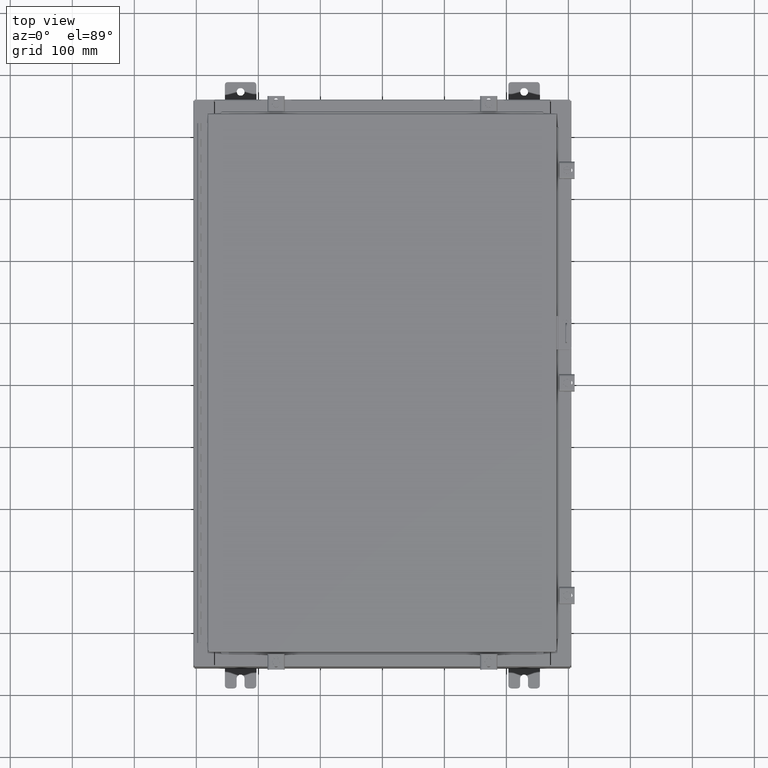
[diagram: clean part render]
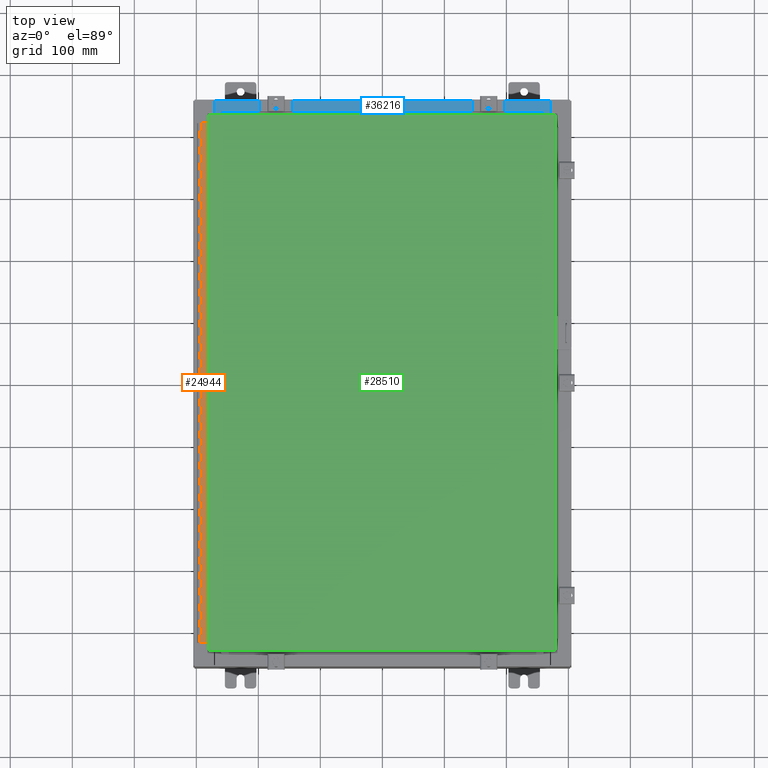
[diagram: same view with three faces highlighted in distinct colors, each labeled with its STEP entity id]
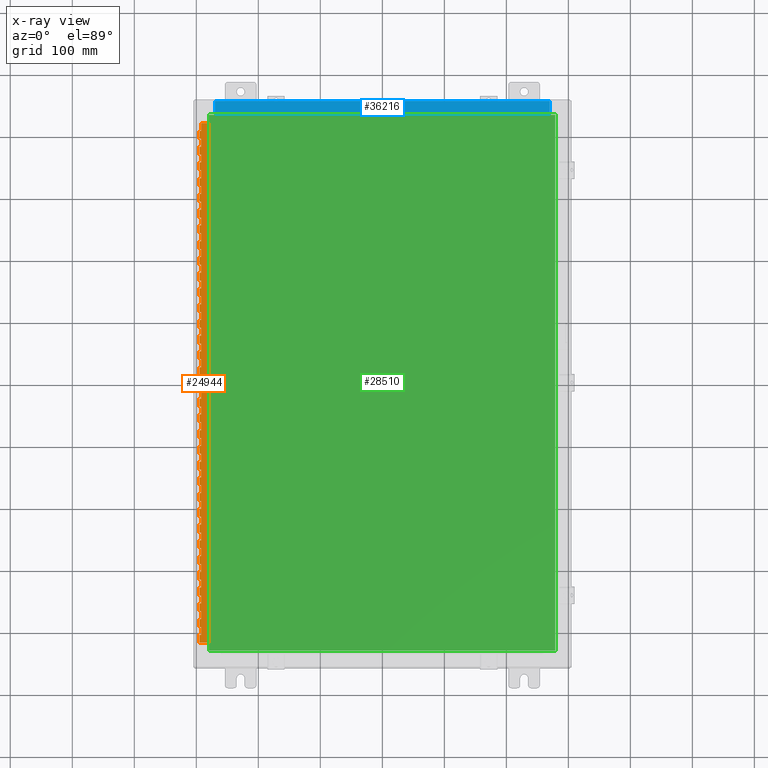
[diagram: x-ray of the same camera — body ghosted, the three highlighted faces saturated]
A machine part, top view with three faces highlighted in distinct colors.
The next image is the same camera in x-ray (body ghosted, the three faces saturated) — at least one of them is partly hidden behind the body in this view.
Their STEP definitions:

[orange] entity #24944 — the highlighted planar face has unit normal (-0, -0, 1).
#23 = CARTESIAN_POINT ( 'NONE',  ( -0.6869999999999978300, 0.6754999999999996600, -12.99999999999999800 ) ) ;
#68 = CARTESIAN_POINT ( 'NONE',  ( -0.6869999999999978300, 0.6754999999999996600, -33.00000000000000000 ) ) ;
#69 = VERTEX_POINT ( 'NONE', #19603 ) ;
#197 = VERTEX_POINT ( 'NONE', #21264 ) ;
#235 = CARTESIAN_POINT ( 'NONE',  ( -0.6869999999999982800, 0.5504999999999997700, -22.50000000000000000 ) ) ;
#255 = ORIENTED_EDGE ( 'NONE', *, *, #32422, .F. ) ;
#433 = EDGE_CURVE ( 'NONE', #32042, #37614, #37359, .T. ) ;
#457 = ORIENTED_EDGE ( 'NONE', *, *, #15009, .F. ) ;
#530 = VECTOR ( 'NONE', #31626, 39.37007874015748100 ) ;
#663 = CARTESIAN_POINT ( 'NONE',  ( -0.6869999999999978300, 0.6754999999999996600, -19.50000000000000000 ) ) ;
#706 = VECTOR ( 'NONE', #10410, 39.37007874015748100 ) ;
#794 = CARTESIAN_POINT ( 'NONE',  ( -0.6869999999999973900, 0.8004999999999995500, -6.499999999999999100 ) ) ;
#882 = CARTESIAN_POINT ( 'NONE',  ( -0.6869999999999978300, 0.6754999999999996600, -16.00000000000000000 ) ) ;
#896 = VERTEX_POINT ( 'NONE', #882 ) ;
#906 = LINE ( 'NONE', #12230, #1977 ) ;
#925 = DIRECTION ( 'NONE',  ( 0.0000000000000000000, -0.0000000000000000000, -1.000000000000000000 ) ) ;
#1060 = VERTEX_POINT ( 'NONE', #11534 ) ;
#1143 = LINE ( 'NONE', #30950, #41334 ) ;
#1157 = CARTESIAN_POINT ( 'NONE',  ( -0.6869999999999978300, 0.6754999999999996600, -31.00000000000000000 ) ) ;
#1196 = EDGE_CURVE ( 'NONE', #16113, #29335, #24048, .T. ) ;
#1218 = DIRECTION ( 'NONE',  ( 3.389037039080723100E-015, 1.000000000000000000, -0.0000000000000000000 ) ) ;
#1285 = DIRECTION ( 'NONE',  ( -3.389037039080723100E-015, -1.000000000000000000, 0.0000000000000000000 ) ) ;
#1316 = CARTESIAN_POINT ( 'NONE',  ( -0.6869999999999982800, 0.5504999999999997700, -17.00000000000000000 ) ) ;
#1362 = VERTEX_POINT ( 'NONE', #10505 ) ;
#1421 = LINE ( 'NONE', #32689, #17630 ) ;
#1429 = ORIENTED_EDGE ( 'NONE', *, *, #30922, .F. ) ;
#1464 = EDGE_CURVE ( 'NONE', #39858, #40782, #14406, .T. ) ;
#1495 = ORIENTED_EDGE ( 'NONE', *, *, #21024, .F. ) ;
#1543 = CARTESIAN_POINT ( 'NONE',  ( -0.6869999999999973900, 0.8004999999999995500, -31.00000000000000000 ) ) ;
#1561 = VERTEX_POINT ( 'NONE', #40919 ) ;
#1584 = EDGE_CURVE ( 'NONE', #1772, #10686, #27642, .T. ) ;
#1596 = LINE ( 'NONE', #21193, #17816 ) ;
#1613 = CARTESIAN_POINT ( 'NONE',  ( -0.6869999999999978300, 0.6754999999999996600, -33.00000000000000000 ) ) ;
#1649 = EDGE_CURVE ( 'NONE', #37582, #18518, #26624, .T. ) ;
#1703 = LINE ( 'NONE', #39123, #34243 ) ;
#1766 = ORIENTED_EDGE ( 'NONE', *, *, #10885, .T. ) ;
#1772 = VERTEX_POINT ( 'NONE', #32101 ) ;
#1819 = DIRECTION ( 'NONE',  ( 0.0000000000000000000, -0.0000000000000000000, -1.000000000000000000 ) ) ;
#1834 = ORIENTED_EDGE ( 'NONE', *, *, #36373, .F. ) ;
#1852 = VERTEX_POINT ( 'NONE', #22828 ) ;
#1908 = CARTESIAN_POINT ( 'NONE',  ( -0.6869999999999978300, 0.6754999999999996600, -32.00000000000000000 ) ) ;
#1916 = EDGE_CURVE ( 'NONE', #25178, #27003, #33730, .T. ) ;
#1936 = CARTESIAN_POINT ( 'NONE',  ( -0.6869999999999973900, 0.8004999999999995500, -1.000000000000000000 ) ) ;
#1954 = DIRECTION ( 'NONE',  ( 3.389037039080723100E-015, 1.000000000000000000, -0.0000000000000000000 ) ) ;
#1977 = VECTOR ( 'NONE', #15483, 39.37007874015748100 ) ;
#2006 = LINE ( 'NONE', #23584, #18193 ) ;
#2012 = EDGE_CURVE ( 'NONE', #2151, #9146, #37284, .T. ) ;
#2148 = CARTESIAN_POINT ( 'NONE',  ( -0.6869999999999978300, 0.6754999999999996600, -5.000000000000000000 ) ) ;
#2149 = VECTOR ( 'NONE', #16296, 39.37007874015748100 ) ;
#2151 = VERTEX_POINT ( 'NONE', #37193 ) ;
#2180 = VERTEX_POINT ( 'NONE', #8196 ) ;
#2213 = CARTESIAN_POINT ( 'NONE',  ( -0.6870000000000022800, -0.6245000000000003900, -33.00000000000000000 ) ) ;
#2219 = VERTEX_POINT ( 'NONE', #24521 ) ;
#2250 = CARTESIAN_POINT ( 'NONE',  ( -0.6869999999999973900, 0.8004999999999995500, -29.50000000000000000 ) ) ;
#2317 = ORIENTED_EDGE ( 'NONE', *, *, #32699, .F. ) ;
#2363 = VERTEX_POINT ( 'NONE', #14439 ) ;
#2390 = LINE ( 'NONE', #2250, #27255 ) ;
#2413 = EDGE_CURVE ( 'NONE', #7645, #37652, #1143, .T. ) ;
#2471 = CARTESIAN_POINT ( 'NONE',  ( -0.6869999999999973900, 0.8004999999999995500, -9.500000000000000000 ) ) ;
#2473 = EDGE_CURVE ( 'NONE', #11438, #39816, #5737, .T. ) ;
#2474 = VERTEX_POINT ( 'NONE', #2148 ) ;
#2480 = CARTESIAN_POINT ( 'NONE',  ( -0.6869999999999978300, 0.6754999999999996600, -28.50000000000000000 ) ) ;
#2492 = VECTOR ( 'NONE', #31722, 39.37007874015748100 ) ;
#2504 = VECTOR ( 'NONE', #3285, 39.37007874015748100 ) ;
#2679 = DIRECTION ( 'NONE',  ( 3.389037039080723100E-015, 1.000000000000000000, -0.0000000000000000000 ) ) ;
#2694 = LINE ( 'NONE', #35057, #18874 ) ;
#2702 = VECTOR ( 'NONE', #10952, 39.37007874015748100 ) ;
#2799 = VECTOR ( 'NONE', #38734, 39.37007874015748100 ) ;
#2805 = VECTOR ( 'NONE', #24254, 39.37007874015748100 ) ;
#2982 = VECTOR ( 'NONE', #18462, 39.37007874015748100 ) ;
#3000 = LINE ( 'NONE', #15582, #5034 ) ;
#3012 = CARTESIAN_POINT ( 'NONE',  ( -0.6869999999999973900, 0.8004999999999995500, -5.000000000000000000 ) ) ;
#3039 = ORIENTED_EDGE ( 'NONE', *, *, #34055, .F. ) ;
#3051 = ORIENTED_EDGE ( 'NONE', *, *, #25267, .T. ) ;
#3114 = VECTOR ( 'NONE', #5504, 39.37007874015748100 ) ;
#3236 = VECTOR ( 'NONE', #41122, 39.37007874015748100 ) ;
#3285 = DIRECTION ( 'NONE',  ( -3.389037039080723100E-015, -1.000000000000000000, 0.0000000000000000000 ) ) ;
#3346 = VECTOR ( 'NONE', #39959, 39.37007874015748100 ) ;
#3371 = VECTOR ( 'NONE', #17808, 39.37007874015748100 ) ;
#3435 = VERTEX_POINT ( 'NONE', #21657 ) ;
#3469 = CARTESIAN_POINT ( 'NONE',  ( -0.6869999999999982800, 0.5504999999999997700, -32.00000000000000000 ) ) ;
#3535 = LINE ( 'NONE', #36759, #10111 ) ;
#3551 = EDGE_CURVE ( 'NONE', #14617, #17348, #25458, .T. ) ;
#3586 = LINE ( 'NONE', #22325, #19802 ) ;
#3635 = ORIENTED_EDGE ( 'NONE', *, *, #12016, .T. ) ;
#3782 = CARTESIAN_POINT ( 'NONE',  ( -0.6869999999999982800, 0.5504999999999997700, -19.50000000000000000 ) ) ;
#3830 = ORIENTED_EDGE ( 'NONE', *, *, #32816, .T. ) ;
#3834 = CARTESIAN_POINT ( 'NONE',  ( -0.6869999999999978300, 0.6754999999999996600, -33.00000000000000000 ) ) ;
#3837 = CARTESIAN_POINT ( 'NONE',  ( -0.6869999999999982800, 0.5504999999999997700, -24.50000000000000000 ) ) ;
#3860 = EDGE_CURVE ( 'NONE', #4095, #18791, #40169, .T. ) ;
#3897 = DIRECTION ( 'NONE',  ( 0.0000000000000000000, 0.0000000000000000000, 1.000000000000000000 ) ) ;
#3900 = CARTESIAN_POINT ( 'NONE',  ( -0.6869999999999978300, 0.6754999999999996600, -9.500000000000000000 ) ) ;
#3940 = CARTESIAN_POINT ( 'NONE',  ( -0.6869999999999973900, 0.8004999999999995500, -23.00000000000000000 ) ) ;
#3942 = VERTEX_POINT ( 'NONE', #7620 ) ;
#3949 = VECTOR ( 'NONE', #40637, 39.37007874015748100 ) ;
#4073 = DIRECTION ( 'NONE',  ( -3.389037039080723100E-015, -1.000000000000000000, 0.0000000000000000000 ) ) ;
#4095 = VERTEX_POINT ( 'NONE', #14949 ) ;
#4103 = LINE ( 'NONE', #28216, #38686 ) ;
#4158 = CARTESIAN_POINT ( 'NONE',  ( -0.6869999999999978300, 0.6754999999999996600, -33.00000000000000000 ) ) ;
#4193 = CARTESIAN_POINT ( 'NONE',  ( -0.6869999999999982800, 0.5504999999999997700, -23.99999999999999600 ) ) ;
#4196 = ORIENTED_EDGE ( 'NONE', *, *, #22455, .T. ) ;
#4218 = DIRECTION ( 'NONE',  ( 3.369016658928398200E-015, 1.000000000000000000, 0.0000000000000000000 ) ) ;
#4329 = VERTEX_POINT ( 'NONE', #663 ) ;
#4351 = CARTESIAN_POINT ( 'NONE',  ( -0.6869999999999973900, 0.8004999999999995500, -22.00000000000000000 ) ) ;
#4353 = EDGE_CURVE ( 'NONE', #8306, #17576, #15200, .T. ) ;
#4397 = EDGE_CURVE ( 'NONE', #25699, #35619, #3535, .T. ) ;
#4463 = ORIENTED_EDGE ( 'NONE', *, *, #18877, .F. ) ;
#4493 = CARTESIAN_POINT ( 'NONE',  ( -0.6869999999999973900, 0.8004999999999995500, -20.00000000000000000 ) ) ;
#4502 = VECTOR ( 'NONE', #32315, 39.37007874015748100 ) ;
#4580 = ORIENTED_EDGE ( 'NONE', *, *, #15902, .F. ) ;
#4586 = CARTESIAN_POINT ( 'NONE',  ( -0.6869999999999978300, 0.6754999999999996600, -14.00000000000000000 ) ) ;
#4591 = LINE ( 'NONE', #12517, #12200 ) ;
#4755 = EDGE_CURVE ( 'NONE', #14306, #21446, #39083, .T. ) ;
#4765 = DIRECTION ( 'NONE',  ( 3.389037039080723100E-015, 1.000000000000000000, -0.0000000000000000000 ) ) ;
#4800 = DIRECTION ( 'NONE',  ( 3.389037039080723100E-015, 1.000000000000000000, -0.0000000000000000000 ) ) ;
#4812 = EDGE_CURVE ( 'NONE', #39625, #24639, #12113, .T. ) ;
#4849 = DIRECTION ( 'NONE',  ( 3.389037039080723100E-015, 1.000000000000000000, -0.0000000000000000000 ) ) ;
#4864 = CARTESIAN_POINT ( 'NONE',  ( -0.6869999999999973900, 0.8004999999999995500, -21.00000000000000000 ) ) ;
#4871 = DIRECTION ( 'NONE',  ( 0.0000000000000000000, 0.0000000000000000000, 1.000000000000000000 ) ) ;
#4991 = LINE ( 'NONE', #29254, #38548 ) ;
#5006 = LINE ( 'NONE', #5324, #30933 ) ;
#5009 = CARTESIAN_POINT ( 'NONE',  ( -0.6869999999999982800, 0.5504999999999997700, -3.500000000000000000 ) ) ;
#5034 = VECTOR ( 'NONE', #38348, 39.37007874015748100 ) ;
#5063 = CARTESIAN_POINT ( 'NONE',  ( -0.6869999999999978300, 0.6754999999999996600, -22.50000000000000000 ) ) ;
#5086 = VECTOR ( 'NONE', #13415, 39.37007874015748100 ) ;
#5112 = VERTEX_POINT ( 'NONE', #4586 ) ;
#5150 = CARTESIAN_POINT ( 'NONE',  ( -0.6869999999999978300, 0.6754999999999996600, -21.00000000000000000 ) ) ;
#5198 = CARTESIAN_POINT ( 'NONE',  ( -0.6869999999999982800, 0.5504999999999997700, -6.499999999999999100 ) ) ;
#5288 = EDGE_CURVE ( 'NONE', #12810, #40302, #22747, .T. ) ;
#5324 = CARTESIAN_POINT ( 'NONE',  ( -0.6869999999999982800, 0.5504999999999997700, -9.500000000000000000 ) ) ;
#5378 = ORIENTED_EDGE ( 'NONE', *, *, #5397, .T. ) ;
#5397 = EDGE_CURVE ( 'NONE', #16113, #34850, #27331, .T. ) ;
#5417 = DIRECTION ( 'NONE',  ( 0.0000000000000000000, -0.0000000000000000000, -1.000000000000000000 ) ) ;
#5473 = CARTESIAN_POINT ( 'NONE',  ( -0.6869999999999978300, 0.6754999999999996600, -33.00000000000000000 ) ) ;
#5501 = ORIENTED_EDGE ( 'NONE', *, *, #21677, .F. ) ;
#5504 = DIRECTION ( 'NONE',  ( 0.0000000000000000000, 0.0000000000000000000, 1.000000000000000000 ) ) ;
#5737 = LINE ( 'NONE', #37778, #21982 ) ;
#5747 = DIRECTION ( 'NONE',  ( 3.369016658928398200E-015, 1.000000000000000000, 0.0000000000000000000 ) ) ;
#5833 = LINE ( 'NONE', #26505, #29669 ) ;
#5905 = DIRECTION ( 'NONE',  ( 0.0000000000000000000, 0.0000000000000000000, 1.000000000000000000 ) ) ;
#5973 = CARTESIAN_POINT ( 'NONE',  ( -0.6869999999999982800, 0.5504999999999997700, -21.50000000000000400 ) ) ;
#5989 = VECTOR ( 'NONE', #29298, 39.37007874015748100 ) ;
#6027 = LINE ( 'NONE', #4493, #14615 ) ;
#6058 = EDGE_CURVE ( 'NONE', #18970, #40977, #20122, .T. ) ;
#6092 = ORIENTED_EDGE ( 'NONE', *, *, #38482, .T. ) ;
#6155 = ORIENTED_EDGE ( 'NONE', *, *, #20113, .F. ) ;
#6191 = LINE ( 'NONE', #17881, #39736 ) ;
#6232 = VECTOR ( 'NONE', #35592, 39.37007874015748100 ) ;
#6314 = CARTESIAN_POINT ( 'NONE',  ( -0.6869999999999973900, 0.8004999999999995500, -21.50000000000000400 ) ) ;
#6403 = ORIENTED_EDGE ( 'NONE', *, *, #18461, .F. ) ;
#6445 = EDGE_CURVE ( 'NONE', #26270, #9404, #22147, .T. ) ;
#6453 = CARTESIAN_POINT ( 'NONE',  ( -0.6869999999999973900, 0.8004999999999995500, -23.50000000000000000 ) ) ;
#6525 = DIRECTION ( 'NONE',  ( -3.389037039080723100E-015, -1.000000000000000000, 0.0000000000000000000 ) ) ;
#6598 = CARTESIAN_POINT ( 'NONE',  ( -0.6869999999999973900, 0.8004999999999995500, -4.500000000000000000 ) ) ;
#6741 = EDGE_CURVE ( 'NONE', #11627, #69, #12955, .T. ) ;
#6800 = VERTEX_POINT ( 'NONE', #10060 ) ;
#6833 = DIRECTION ( 'NONE',  ( -3.389037039080723100E-015, -1.000000000000000000, 0.0000000000000000000 ) ) ;
#6849 = CARTESIAN_POINT ( 'NONE',  ( -0.6869999999999982800, 0.5504999999999997700, -22.50000000000000000 ) ) ;
#6858 = CARTESIAN_POINT ( 'NONE',  ( -0.6869999999999982800, 0.5504999999999997700, -17.99999999999999600 ) ) ;
#6877 = CARTESIAN_POINT ( 'NONE',  ( -0.6869999999999982800, 0.5504999999999997700, -6.000000000000000900 ) ) ;
#6941 = VECTOR ( 'NONE', #34432, 39.37007874015748100 ) ;
#6946 = CARTESIAN_POINT ( 'NONE',  ( -0.6869999999999982800, 0.5504999999999997700, -6.499999999999999100 ) ) ;
#7009 = DIRECTION ( 'NONE',  ( 0.0000000000000000000, -0.0000000000000000000, -1.000000000000000000 ) ) ;
#7012 = CARTESIAN_POINT ( 'NONE',  ( -0.6869999999999982800, 0.5504999999999997700, -31.50000000000000400 ) ) ;
#7018 = ORIENTED_EDGE ( 'NONE', *, *, #9879, .F. ) ;
#7195 = CARTESIAN_POINT ( 'NONE',  ( -0.6869999999999978300, 0.6754999999999996600, -26.00000000000000000 ) ) ;
#7204 = VECTOR ( 'NONE', #31845, 39.37007874015748100 ) ;
#7217 = VECTOR ( 'NONE', #15015, 39.37007874015748100 ) ;
#7249 = EDGE_CURVE ( 'NONE', #39941, #32042, #35518, .T. ) ;
#7301 = DIRECTION ( 'NONE',  ( -3.389037039080723100E-015, -1.000000000000000000, 0.0000000000000000000 ) ) ;
#7344 = CARTESIAN_POINT ( 'NONE',  ( -0.6869999999999978300, 0.6754999999999996600, -29.99999999999999600 ) ) ;
#7354 = LINE ( 'NONE', #8651, #40911 ) ;
#7386 = CARTESIAN_POINT ( 'NONE',  ( -0.6869999999999982800, 0.5504999999999997700, -32.50000000000000000 ) ) ;
#7445 = CARTESIAN_POINT ( 'NONE',  ( -0.6869999999999978300, 0.6754999999999996600, -14.99999999999999800 ) ) ;
#7469 = LINE ( 'NONE', #4158, #31378 ) ;
#7568 = ORIENTED_EDGE ( 'NONE', *, *, #28933, .T. ) ;
#7575 = CARTESIAN_POINT ( 'NONE',  ( -0.6869999999999978300, 0.6754999999999996600, -33.00000000000000000 ) ) ;
#7618 = ORIENTED_EDGE ( 'NONE', *, *, #11360, .F. ) ;
#7620 = CARTESIAN_POINT ( 'NONE',  ( -0.6869999999999982800, 0.5504999999999997700, -20.50000000000000400 ) ) ;
#7624 = ORIENTED_EDGE ( 'NONE', *, *, #5288, .F. ) ;
#7645 = VERTEX_POINT ( 'NONE', #12608 ) ;
#7657 = CARTESIAN_POINT ( 'NONE',  ( -0.6869999999999973900, 0.8004999999999995500, -19.50000000000000000 ) ) ;
#7664 = LINE ( 'NONE', #9748, #31569 ) ;
#7692 = ORIENTED_EDGE ( 'NONE', *, *, #40334, .F. ) ;
#7732 = EDGE_CURVE ( 'NONE', #27567, #1362, #9504, .T. ) ;
#7791 = CARTESIAN_POINT ( 'NONE',  ( -0.6869999999999978300, 0.6754999999999996600, -33.00000000000000000 ) ) ;
#7883 = VECTOR ( 'NONE', #35725, 39.37007874015748100 ) ;
#7937 = VERTEX_POINT ( 'NONE', #24091 ) ;
#7968 = VECTOR ( 'NONE', #17330, 39.37007874015748100 ) ;
#7980 = CARTESIAN_POINT ( 'NONE',  ( -0.6869999999999982800, 0.5504999999999997700, -2.500000000000000000 ) ) ;
#7987 = EDGE_CURVE ( 'NONE', #39816, #12296, #17585, .T. ) ;
#8040 = CARTESIAN_POINT ( 'NONE',  ( -0.6869999999999978300, 0.6754999999999996600, -11.99999999999999800 ) ) ;
#8172 = CARTESIAN_POINT ( 'NONE',  ( -0.6869999999999982800, 0.5504999999999997700, -29.50000000000000000 ) ) ;
#8196 = CARTESIAN_POINT ( 'NONE',  ( -0.6869999999999982800, 0.5504999999999997700, -13.50000000000000000 ) ) ;
#8282 = VERTEX_POINT ( 'NONE', #32468 ) ;
#8301 = ORIENTED_EDGE ( 'NONE', *, *, #6445, .F. ) ;
#8306 = VERTEX_POINT ( 'NONE', #29317 ) ;
#8330 = CARTESIAN_POINT ( 'NONE',  ( -0.6869999999999978300, 0.6754999999999996600, -7.499999999999999100 ) ) ;
#8340 = VECTOR ( 'NONE', #21872, 39.37007874015748100 ) ;
#8357 = LINE ( 'NONE', #18826, #15937 ) ;
#8384 = LINE ( 'NONE', #37775, #32263 ) ;
#8448 = DIRECTION ( 'NONE',  ( 3.389037039080723100E-015, 1.000000000000000000, -0.0000000000000000000 ) ) ;
#8461 = CARTESIAN_POINT ( 'NONE',  ( -0.6869999999999982800, 0.5504999999999997700, -9.500000000000000000 ) ) ;
#8522 = VECTOR ( 'NONE', #16424, 39.37007874015748100 ) ;
#8560 = VECTOR ( 'NONE', #13770, 39.37007874015748100 ) ;
#8651 = CARTESIAN_POINT ( 'NONE',  ( -0.6869999999999982800, 0.5504999999999997700, -25.50000000000000400 ) ) ;
#8664 = CARTESIAN_POINT ( 'NONE',  ( -0.6869999999999978300, 0.6754999999999996600, -24.50000000000000000 ) ) ;
#8691 = DIRECTION ( 'NONE',  ( 3.389037039080723100E-015, 1.000000000000000000, -0.0000000000000000000 ) ) ;
#8713 = DIRECTION ( 'NONE',  ( -3.389037039080723100E-015, -1.000000000000000000, 0.0000000000000000000 ) ) ;
#8734 = LINE ( 'NONE', #10232, #33637 ) ;
#8748 = EDGE_CURVE ( 'NONE', #31392, #35002, #23640, .T. ) ;
#8827 = EDGE_CURVE ( 'NONE', #18518, #1362, #19539, .T. ) ;
#8854 = VECTOR ( 'NONE', #20807, 39.37007874015748100 ) ;
#8857 = ORIENTED_EDGE ( 'NONE', *, *, #37058, .F. ) ;
#8869 = CARTESIAN_POINT ( 'NONE',  ( -0.6870000000000022800, -0.6245000000000003900, -33.00000000000000000 ) ) ;
#8874 = VERTEX_POINT ( 'NONE', #14156 ) ;
#8914 = VERTEX_POINT ( 'NONE', #37074 ) ;
#8919 = LINE ( 'NONE', #6453, #7883 ) ;
#8920 = LINE ( 'NONE', #10967, #33819 ) ;
#8928 = ORIENTED_EDGE ( 'NONE', *, *, #21867, .F. ) ;
#8998 = LINE ( 'NONE', #33578, #7968 ) ;
#9059 = CARTESIAN_POINT ( 'NONE',  ( -0.6869999999999998300, 0.07549999999999991400, -33.00000000000000000 ) ) ;
#9076 = VECTOR ( 'NONE', #41370, 39.37007874015748100 ) ;
#9106 = VECTOR ( 'NONE', #30335, 39.37007874015748100 ) ;
#9146 = VERTEX_POINT ( 'NONE', #15562 ) ;
#9162 = CARTESIAN_POINT ( 'NONE',  ( -0.6869999999999973900, 0.8004999999999995500, -17.00000000000000000 ) ) ;
#9169 = CARTESIAN_POINT ( 'NONE',  ( -0.6869999999999978300, 0.6754999999999996600, -25.50000000000000400 ) ) ;
#9178 = ORIENTED_EDGE ( 'NONE', *, *, #29588, .F. ) ;
#9220 = LINE ( 'NONE', #14784, #41771 ) ;
#9242 = ORIENTED_EDGE ( 'NONE', *, *, #16420, .F. ) ;
#9290 = DIRECTION ( 'NONE',  ( 3.389037039080723100E-015, 1.000000000000000000, -0.0000000000000000000 ) ) ;
#9363 = VECTOR ( 'NONE', #5417, 39.37007874015748100 ) ;
#9366 = ORIENTED_EDGE ( 'NONE', *, *, #433, .F. ) ;
#9404 = VERTEX_POINT ( 'NONE', #7195 ) ;
#9415 = CARTESIAN_POINT ( 'NONE',  ( -0.6869999999999978300, 0.6754999999999996600, -33.00000000000000000 ) ) ;
#9425 = VECTOR ( 'NONE', #12823, 39.37007874015748100 ) ;
#9504 = LINE ( 'NONE', #13165, #8522 ) ;
#9524 = CARTESIAN_POINT ( 'NONE',  ( -0.6869999999999982800, 0.5504999999999997700, -23.50000000000000000 ) ) ;
#9530 = CARTESIAN_POINT ( 'NONE',  ( -0.6869999999999973900, 0.8004999999999995500, -12.49999999999999800 ) ) ;
#9607 = VECTOR ( 'NONE', #22165, 39.37007874015748100 ) ;
#9649 = DIRECTION ( 'NONE',  ( 3.389037039080723100E-015, 1.000000000000000000, -0.0000000000000000000 ) ) ;
#9746 = LINE ( 'NONE', #9795, #26029 ) ;
#9748 = CARTESIAN_POINT ( 'NONE',  ( -0.6869999999999973900, 0.8004999999999995500, -13.50000000000000000 ) ) ;
#9756 = ORIENTED_EDGE ( 'NONE', *, *, #1196, .F. ) ;
#9795 = CARTESIAN_POINT ( 'NONE',  ( -0.6869999999999982800, 0.5504999999999997700, -14.49999999999999800 ) ) ;
#9879 = EDGE_CURVE ( 'NONE', #12868, #14617, #26105, .T. ) ;
#9910 = VECTOR ( 'NONE', #36847, 39.37007874015748100 ) ;
#9972 = CARTESIAN_POINT ( 'NONE',  ( -0.6869999999999973900, 0.8004999999999995500, -16.00000000000000000 ) ) ;
#9995 = VECTOR ( 'NONE', #41768, 39.37007874015748100 ) ;
#10026 = VECTOR ( 'NONE', #31855, 39.37007874015748100 ) ;
#10060 = CARTESIAN_POINT ( 'NONE',  ( -0.6869999999999982800, 0.5504999999999997700, -22.00000000000000000 ) ) ;
#10101 = LINE ( 'NONE', #9415, #35076 ) ;
#10111 = VECTOR ( 'NONE', #4218, 39.37007874015748100 ) ;
#10129 = VERTEX_POINT ( 'NONE', #36914 ) ;
#10232 = CARTESIAN_POINT ( 'NONE',  ( -0.6869999999999978300, 0.6754999999999996600, -33.00000000000000000 ) ) ;
#10234 = LINE ( 'NONE', #40088, #26512 ) ;
#10305 = EDGE_CURVE ( 'NONE', #18145, #25699, #11835, .T. ) ;
#10353 = CARTESIAN_POINT ( 'NONE',  ( -0.6869999999999978300, 0.6754999999999996600, -33.00000000000000000 ) ) ;
#10361 = CARTESIAN_POINT ( 'NONE',  ( -0.6869999999999982800, 0.5504999999999997700, -12.99999999999999800 ) ) ;
#10398 = CARTESIAN_POINT ( 'NONE',  ( -0.6869999999999978300, 0.6754999999999996600, -33.00000000000000000 ) ) ;
#10410 = DIRECTION ( 'NONE',  ( 3.389037039080723100E-015, 1.000000000000000000, -0.0000000000000000000 ) ) ;
#10416 = CARTESIAN_POINT ( 'NONE',  ( -0.6869999999999978300, 0.6754999999999996600, -32.50000000000000000 ) ) ;
#10465 = VECTOR ( 'NONE', #25755, 39.37007874015748100 ) ;
#10476 = CARTESIAN_POINT ( 'NONE',  ( -0.6869999999999978300, 0.6754999999999996600, -33.00000000000000000 ) ) ;
#10505 = CARTESIAN_POINT ( 'NONE',  ( -0.6869999999999978300, 0.6754999999999996600, -28.00000000000000000 ) ) ;
#10506 = LINE ( 'NONE', #13520, #20162 ) ;
#10509 = CARTESIAN_POINT ( 'NONE',  ( -0.6869999999999973900, 0.8004999999999995500, -15.50000000000000000 ) ) ;
#10513 = ORIENTED_EDGE ( 'NONE', *, *, #1464, .F. ) ;
#10576 = VERTEX_POINT ( 'NONE', #13552 ) ;
#10588 = DIRECTION ( 'NONE',  ( -3.389037039080723100E-015, -1.000000000000000000, 0.0000000000000000000 ) ) ;
#10605 = VECTOR ( 'NONE', #17785, 39.37007874015748100 ) ;
#10614 = LINE ( 'NONE', #31849, #36591 ) ;
#10686 = VERTEX_POINT ( 'NONE', #17352 ) ;
#10725 = LINE ( 'NONE', #39074, #2149 ) ;
#10760 = CARTESIAN_POINT ( 'NONE',  ( -0.6869999999999973900, 0.8004999999999995500, -28.00000000000000000 ) ) ;
#10761 = ORIENTED_EDGE ( 'NONE', *, *, #8827, .F. ) ;
#10885 = EDGE_CURVE ( 'NONE', #4329, #16726, #12846, .T. ) ;
#10932 = VECTOR ( 'NONE', #20552, 39.37007874015748100 ) ;
#10952 = DIRECTION ( 'NONE',  ( 0.0000000000000000000, 0.0000000000000000000, 1.000000000000000000 ) ) ;
#10967 = CARTESIAN_POINT ( 'NONE',  ( -0.6869999999999973900, 0.8004999999999995500, -4.000000000000000000 ) ) ;
#11081 = LINE ( 'NONE', #2471, #2492 ) ;
#11107 = DIRECTION ( 'NONE',  ( 3.389037039080723100E-015, 1.000000000000000000, -0.0000000000000000000 ) ) ;
#11303 = CARTESIAN_POINT ( 'NONE',  ( -0.6869999999999982800, 0.5504999999999997700, -13.50000000000000000 ) ) ;
#11360 = EDGE_CURVE ( 'NONE', #18970, #3942, #13827, .T. ) ;
#11407 = ORIENTED_EDGE ( 'NONE', *, *, #31326, .F. ) ;
#11409 = LINE ( 'NONE', #7657, #2805 ) ;
#11429 = VERTEX_POINT ( 'NONE', #26626 ) ;
#11438 = VERTEX_POINT ( 'NONE', #10416 ) ;
#11467 = VERTEX_POINT ( 'NONE', #13961 ) ;
#11534 = CARTESIAN_POINT ( 'NONE',  ( -0.6869999999999982800, 0.5504999999999997700, -25.50000000000000400 ) ) ;
#11563 = DIRECTION ( 'NONE',  ( 0.0000000000000000000, -0.0000000000000000000, -1.000000000000000000 ) ) ;
#11605 = ORIENTED_EDGE ( 'NONE', *, *, #21545, .F. ) ;
#11627 = VERTEX_POINT ( 'NONE', #37566 ) ;
#11646 = LINE ( 'NONE', #24209, #37593 ) ;
#11670 = EDGE_CURVE ( 'NONE', #36440, #14550, #36208, .T. ) ;
#11755 = EDGE_CURVE ( 'NONE', #24639, #29318, #25517, .T. ) ;
#11797 = CARTESIAN_POINT ( 'NONE',  ( -0.6869999999999973900, 0.8004999999999995500, -8.000000000000000000 ) ) ;
#11816 = ORIENTED_EDGE ( 'NONE', *, *, #16750, .F. ) ;
#11835 = LINE ( 'NONE', #9059, #27095 ) ;
#11882 = VECTOR ( 'NONE', #925, 39.37007874015748100 ) ;
#11887 = DIRECTION ( 'NONE',  ( 0.0000000000000000000, -0.0000000000000000000, -1.000000000000000000 ) ) ;
#11987 = ORIENTED_EDGE ( 'NONE', *, *, #13387, .F. ) ;
#11993 = LINE ( 'NONE', #11303, #3371 ) ;
#12016 = EDGE_CURVE ( 'NONE', #17593, #30422, #8734, .T. ) ;
#12062 = VERTEX_POINT ( 'NONE', #10361 ) ;
#12113 = LINE ( 'NONE', #12821, #4502 ) ;
#12121 = LINE ( 'NONE', #38934, #2504 ) ;
#12200 = VECTOR ( 'NONE', #41832, 39.37007874015748100 ) ;
#12217 = VECTOR ( 'NONE', #1954, 39.37007874015748100 ) ;
#12230 = CARTESIAN_POINT ( 'NONE',  ( -0.6869999999999973900, 0.8004999999999995500, -26.50000000000000400 ) ) ;
#12296 = VERTEX_POINT ( 'NONE', #37520 ) ;
#12332 = CARTESIAN_POINT ( 'NONE',  ( -0.6869999999999982800, 0.5504999999999997700, -0.5000000000000000000 ) ) ;
#12355 = DIRECTION ( 'NONE',  ( 0.0000000000000000000, -0.0000000000000000000, -1.000000000000000000 ) ) ;
#12413 = CARTESIAN_POINT ( 'NONE',  ( -0.6869999999999978300, 0.6754999999999996600, -22.00000000000000000 ) ) ;
#12421 = CARTESIAN_POINT ( 'NONE',  ( -0.6869999999999982800, 0.5504999999999997700, -4.500000000000000000 ) ) ;
#12477 = VERTEX_POINT ( 'NONE', #12607 ) ;
#12517 = CARTESIAN_POINT ( 'NONE',  ( -0.6869999999999973900, 0.8004999999999995500, -29.99999999999999600 ) ) ;
#12555 = EDGE_CURVE ( 'NONE', #35331, #2180, #7664, .T. ) ;
#12560 = LINE ( 'NONE', #27550, #3949 ) ;
#12607 = CARTESIAN_POINT ( 'NONE',  ( -0.6869999999999982800, 0.5504999999999997700, -19.50000000000000000 ) ) ;
#12608 = CARTESIAN_POINT ( 'NONE',  ( -0.6869999999999978300, 0.6754999999999996600, -14.49999999999999800 ) ) ;
#12671 = EDGE_CURVE ( 'NONE', #40077, #29318, #28504, .T. ) ;
#12675 = LINE ( 'NONE', #3782, #5086 ) ;
#12716 = EDGE_CURVE ( 'NONE', #22768, #18791, #20855, .T. ) ;
#12769 = DIRECTION ( 'NONE',  ( -3.389037039080723100E-015, -1.000000000000000000, 0.0000000000000000000 ) ) ;
#12779 = DIRECTION ( 'NONE',  ( -3.389037039080723100E-015, -1.000000000000000000, 0.0000000000000000000 ) ) ;
#12810 = VERTEX_POINT ( 'NONE', #27817 ) ;
#12821 = CARTESIAN_POINT ( 'NONE',  ( -0.6869999999999982800, 0.5504999999999997700, -23.50000000000000000 ) ) ;
#12823 = DIRECTION ( 'NONE',  ( 3.389037039080723100E-015, 1.000000000000000000, -0.0000000000000000000 ) ) ;
#12846 = LINE ( 'NONE', #5473, #3236 ) ;
#12868 = VERTEX_POINT ( 'NONE', #41191 ) ;
#12955 = LINE ( 'NONE', #19414, #21629 ) ;
#13074 = VECTOR ( 'NONE', #8713, 39.37007874015748100 ) ;
#13145 = VECTOR ( 'NONE', #5905, 39.37007874015748100 ) ;
#13165 = CARTESIAN_POINT ( 'NONE',  ( -0.6869999999999978300, 0.6754999999999996600, -33.00000000000000000 ) ) ;
#13179 = CARTESIAN_POINT ( 'NONE',  ( -0.6869999999999978300, 0.6754999999999996600, -10.00000000000000000 ) ) ;
#13195 = DIRECTION ( 'NONE',  ( 0.0000000000000000000, 0.0000000000000000000, 1.000000000000000000 ) ) ;
#13291 = VECTOR ( 'NONE', #4849, 39.37007874015748100 ) ;
#13308 = EDGE_CURVE ( 'NONE', #21259, #35461, #33028, .T. ) ;
#13350 = VERTEX_POINT ( 'NONE', #23923 ) ;
#13387 = EDGE_CURVE ( 'NONE', #40782, #33197, #11646, .T. ) ;
#13412 = CARTESIAN_POINT ( 'NONE',  ( -0.6869999999999998300, 0.07549999999999991400, -33.00000000000000000 ) ) ;
#13415 = DIRECTION ( 'NONE',  ( 0.0000000000000000000, -0.0000000000000000000, -1.000000000000000000 ) ) ;
#13417 = ORIENTED_EDGE ( 'NONE', *, *, #13308, .F. ) ;
#13428 = EDGE_CURVE ( 'NONE', #19044, #1561, #28930, .T. ) ;
#13520 = CARTESIAN_POINT ( 'NONE',  ( -0.6869999999999982800, 0.5504999999999997700, -8.500000000000000000 ) ) ;
#13528 = ORIENTED_EDGE ( 'NONE', *, *, #19117, .T. ) ;
#13552 = CARTESIAN_POINT ( 'NONE',  ( -0.6869999999999982800, 0.5504999999999997700, -12.49999999999999800 ) ) ;
#13565 = LINE ( 'NONE', #6598, #5989 ) ;
#13601 = EDGE_CURVE ( 'NONE', #23273, #24031, #15180, .T. ) ;
#13646 = EDGE_CURVE ( 'NONE', #11438, #16062, #10101, .T. ) ;
#13754 = VERTEX_POINT ( 'NONE', #3469 ) ;
#13770 = DIRECTION ( 'NONE',  ( -3.389037039080723100E-015, -1.000000000000000000, 0.0000000000000000000 ) ) ;
#13777 = ORIENTED_EDGE ( 'NONE', *, *, #24549, .F. ) ;
#13827 = LINE ( 'NONE', #23998, #39793 ) ;
#13844 = VERTEX_POINT ( 'NONE', #39547 ) ;
#13853 = CARTESIAN_POINT ( 'NONE',  ( -0.6869999999999973900, 0.8004999999999995500, -14.99999999999999800 ) ) ;
#13860 = EDGE_CURVE ( 'NONE', #40646, #1060, #2006, .T. ) ;
#13936 = EDGE_CURVE ( 'NONE', #40077, #10129, #17169, .T. ) ;
#13937 = DIRECTION ( 'NONE',  ( 0.0000000000000000000, 0.0000000000000000000, 1.000000000000000000 ) ) ;
#13961 = CARTESIAN_POINT ( 'NONE',  ( -0.6869999999999982800, 0.5504999999999997700, -11.99999999999999800 ) ) ;
#13978 = CARTESIAN_POINT ( 'NONE',  ( -0.6869999999999973900, 0.8004999999999995500, -7.000000000000000000 ) ) ;
#14057 = DIRECTION ( 'NONE',  ( 3.389037039080723100E-015, 1.000000000000000000, -0.0000000000000000000 ) ) ;
#14066 = ORIENTED_EDGE ( 'NONE', *, *, #36560, .F. ) ;
#14100 = VECTOR ( 'NONE', #19142, 39.37007874015748100 ) ;
#14121 = CARTESIAN_POINT ( 'NONE',  ( -0.6869999999999978300, 0.6754999999999996600, -33.00000000000000000 ) ) ;
#14156 = CARTESIAN_POINT ( 'NONE',  ( -0.6869999999999978300, 0.6754999999999996600, -1.000000000000000000 ) ) ;
#14168 = EDGE_CURVE ( 'NONE', #2219, #22768, #35029, .T. ) ;
#14236 = EDGE_CURVE ( 'NONE', #17576, #21259, #24297, .T. ) ;
#14306 = VERTEX_POINT ( 'NONE', #28189 ) ;
#14406 = LINE ( 'NONE', #37096, #23057 ) ;
#14439 = CARTESIAN_POINT ( 'NONE',  ( -0.6869999999999978300, 0.6754999999999996600, -26.50000000000000400 ) ) ;
#14550 = VERTEX_POINT ( 'NONE', #17333 ) ;
#14615 = VECTOR ( 'NONE', #1218, 39.37007874015748100 ) ;
#14617 = VERTEX_POINT ( 'NONE', #1316 ) ;
#14623 = ORIENTED_EDGE ( 'NONE', *, *, #38859, .T. ) ;
#14626 = VERTEX_POINT ( 'NONE', #37273 ) ;
#14685 = ORIENTED_EDGE ( 'NONE', *, *, #37275, .T. ) ;
#14784 = CARTESIAN_POINT ( 'NONE',  ( -0.6869999999999973900, 0.8004999999999995500, -8.500000000000000000 ) ) ;
#14797 = VECTOR ( 'NONE', #15883, 39.37007874015748100 ) ;
#14800 = EDGE_CURVE ( 'NONE', #25444, #28865, #11081, .T. ) ;
#14836 = DIRECTION ( 'NONE',  ( 0.0000000000000000000, 0.0000000000000000000, 1.000000000000000000 ) ) ;
#14924 = EDGE_CURVE ( 'NONE', #38208, #8282, #41624, .T. ) ;
#14949 = CARTESIAN_POINT ( 'NONE',  ( -0.6869999999999978300, 0.6754999999999996600, -31.50000000000000400 ) ) ;
#14972 = EDGE_CURVE ( 'NONE', #40302, #23242, #4991, .T. ) ;
#14986 = VECTOR ( 'NONE', #3897, 39.37007874015748100 ) ;
#15009 = EDGE_CURVE ( 'NONE', #8282, #31099, #20207, .T. ) ;
#15015 = DIRECTION ( 'NONE',  ( -3.389037039080723100E-015, -1.000000000000000000, 0.0000000000000000000 ) ) ;
#15099 = ORIENTED_EDGE ( 'NONE', *, *, #37871, .F. ) ;
#15168 = CARTESIAN_POINT ( 'NONE',  ( -0.6869999999999982800, 0.5504999999999997700, -4.500000000000000000 ) ) ;
#15180 = LINE ( 'NONE', #35053, #13145 ) ;
#15200 = LINE ( 'NONE', #794, #28442 ) ;
#15228 = DIRECTION ( 'NONE',  ( 0.0000000000000000000, 0.0000000000000000000, 1.000000000000000000 ) ) ;
#15242 = ORIENTED_EDGE ( 'NONE', *, *, #4353, .F. ) ;
#15279 = ORIENTED_EDGE ( 'NONE', *, *, #19243, .F. ) ;
#15329 = DIRECTION ( 'NONE',  ( 3.389037039080723100E-015, 1.000000000000000000, -0.0000000000000000000 ) ) ;
#15380 = VERTEX_POINT ( 'NONE', #15570 ) ;
#15391 = CARTESIAN_POINT ( 'NONE',  ( -0.6869999999999978300, 0.6754999999999996600, -13.50000000000000000 ) ) ;
#15394 = VECTOR ( 'NONE', #35708, 39.37007874015748100 ) ;
#15470 = VECTOR ( 'NONE', #39639, 39.37007874015748100 ) ;
#15483 = DIRECTION ( 'NONE',  ( -3.389037039080723100E-015, -1.000000000000000000, 0.0000000000000000000 ) ) ;
#15562 = CARTESIAN_POINT ( 'NONE',  ( -0.6869999999999982800, 0.5504999999999997700, -10.50000000000000000 ) ) ;
#15570 = CARTESIAN_POINT ( 'NONE',  ( -0.6869999999999982800, 0.5504999999999997700, -3.500000000000000000 ) ) ;
#15579 = VERTEX_POINT ( 'NONE', #12413 ) ;
#15582 = CARTESIAN_POINT ( 'NONE',  ( -0.6869999999999982800, 0.5504999999999997700, -12.49999999999999800 ) ) ;
#15738 = VECTOR ( 'NONE', #7301, 39.37007874015748100 ) ;
#15746 = ORIENTED_EDGE ( 'NONE', *, *, #1584, .F. ) ;
#15808 = VECTOR ( 'NONE', #30690, 39.37007874015748100 ) ;
#15821 = EDGE_CURVE ( 'NONE', #29989, #20864, #35947, .T. ) ;
#15823 = LINE ( 'NONE', #21437, #7217 ) ;
#15883 = DIRECTION ( 'NONE',  ( 0.0000000000000000000, 0.0000000000000000000, 1.000000000000000000 ) ) ;
#15902 = EDGE_CURVE ( 'NONE', #39635, #12868, #8998, .T. ) ;
#15937 = VECTOR ( 'NONE', #41493, 39.37007874015748100 ) ;
#15950 = CARTESIAN_POINT ( 'NONE',  ( -0.6869999999999978300, 0.6754999999999996600, -33.00000000000000000 ) ) ;
#15963 = CARTESIAN_POINT ( 'NONE',  ( -0.6869999999999982800, 0.5504999999999997700, -15.50000000000000000 ) ) ;
#16022 = DIRECTION ( 'NONE',  ( 0.0000000000000000000, -0.0000000000000000000, -1.000000000000000000 ) ) ;
#16045 = VECTOR ( 'NONE', #39883, 39.37007874015748100 ) ;
#16062 = VERTEX_POINT ( 'NONE', #1908 ) ;
#16113 = VERTEX_POINT ( 'NONE', #31447 ) ;
#16255 = VERTEX_POINT ( 'NONE', #35287 ) ;
#16296 = DIRECTION ( 'NONE',  ( 0.0000000000000000000, -0.0000000000000000000, -1.000000000000000000 ) ) ;
#16306 = EDGE_CURVE ( 'NONE', #25932, #2474, #36915, .T. ) ;
#16351 = EDGE_CURVE ( 'NONE', #39941, #39216, #27241, .T. ) ;
#16420 = EDGE_CURVE ( 'NONE', #10129, #1772, #23143, .T. ) ;
#16424 = DIRECTION ( 'NONE',  ( 0.0000000000000000000, 0.0000000000000000000, 1.000000000000000000 ) ) ;
#16432 = ORIENTED_EDGE ( 'NONE', *, *, #41163, .F. ) ;
#16474 = ORIENTED_EDGE ( 'NONE', *, *, #1649, .F. ) ;
#16574 = VERTEX_POINT ( 'NONE', #33802 ) ;
#16709 = CARTESIAN_POINT ( 'NONE',  ( -0.6869999999999978300, 0.6754999999999996600, -27.50000000000000000 ) ) ;
#16726 = VERTEX_POINT ( 'NONE', #24831 ) ;
#16750 = EDGE_CURVE ( 'NONE', #33098, #42013, #28232, .T. ) ;
#16774 = VECTOR ( 'NONE', #9290, 39.37007874015748100 ) ;
#16794 = LINE ( 'NONE', #37595, #22402 ) ;
#16803 = DIRECTION ( 'NONE',  ( -3.389037039080723100E-015, -1.000000000000000000, 0.0000000000000000000 ) ) ;
#16861 = EDGE_CURVE ( 'NONE', #25539, #39625, #8919, .T. ) ;
#16872 = VERTEX_POINT ( 'NONE', #22753 ) ;
#17041 = CARTESIAN_POINT ( 'NONE',  ( -0.6869999999999978300, 0.6754999999999996600, -3.500000000000000000 ) ) ;
#17169 = LINE ( 'NONE', #30413, #23794 ) ;
#17182 = CARTESIAN_POINT ( 'NONE',  ( -0.6869999999999982800, 0.5504999999999997700, -11.50000000000000000 ) ) ;
#17232 = DIRECTION ( 'NONE',  ( 3.389037039080723100E-015, 1.000000000000000000, -0.0000000000000000000 ) ) ;
#17264 = EDGE_CURVE ( 'NONE', #3435, #30422, #26137, .T. ) ;
#17309 = EDGE_CURVE ( 'NONE', #42013, #24031, #32756, .T. ) ;
#17317 = DIRECTION ( 'NONE',  ( 0.0000000000000000000, 0.0000000000000000000, 1.000000000000000000 ) ) ;
#17330 = DIRECTION ( 'NONE',  ( -3.389037039080723100E-015, -1.000000000000000000, 0.0000000000000000000 ) ) ;
#17333 = CARTESIAN_POINT ( 'NONE',  ( -0.6869999999999982800, 0.5504999999999997700, -1.000000000000000000 ) ) ;
#17348 = VERTEX_POINT ( 'NONE', #18705 ) ;
#17352 = CARTESIAN_POINT ( 'NONE',  ( -0.6869999999999978300, 0.6754999999999996600, -24.99999999999999600 ) ) ;
#17458 = VECTOR ( 'NONE', #8691, 39.37007874015748100 ) ;
#17535 = VECTOR ( 'NONE', #13195, 39.37007874015748100 ) ;
#17562 = VERTEX_POINT ( 'NONE', #13179 ) ;
#17570 = DIRECTION ( 'NONE',  ( 0.0000000000000000000, -0.0000000000000000000, -1.000000000000000000 ) ) ;
#17572 = VECTOR ( 'NONE', #40805, 39.37007874015748100 ) ;
#17576 = VERTEX_POINT ( 'NONE', #6946 ) ;
#17585 = LINE ( 'NONE', #34213, #41548 ) ;
#17593 = VERTEX_POINT ( 'NONE', #16709 ) ;
#17630 = VECTOR ( 'NONE', #6833, 39.37007874015748100 ) ;
#17688 = LINE ( 'NONE', #4351, #9106 ) ;
#17735 = VERTEX_POINT ( 'NONE', #37208 ) ;
#17744 = CARTESIAN_POINT ( 'NONE',  ( -0.6869999999999978300, 0.6754999999999996600, -20.00000000000000000 ) ) ;
#17778 = LINE ( 'NONE', #28344, #530 ) ;
#17785 = DIRECTION ( 'NONE',  ( 0.0000000000000000000, -0.0000000000000000000, -1.000000000000000000 ) ) ;
#17808 = DIRECTION ( 'NONE',  ( 0.0000000000000000000, -0.0000000000000000000, -1.000000000000000000 ) ) ;
#17816 = VECTOR ( 'NONE', #24464, 39.37007874015748100 ) ;
#17881 = CARTESIAN_POINT ( 'NONE',  ( -0.6869999999999978300, 0.6754999999999996600, -33.00000000000000000 ) ) ;
#17937 = CARTESIAN_POINT ( 'NONE',  ( -0.6869999999999973900, 0.8004999999999995500, -11.99999999999999800 ) ) ;
#18041 = CARTESIAN_POINT ( 'NONE',  ( -0.6869999999999998300, 0.07549999999999991400, 0.0000000000000000000 ) ) ;
#18069 = LINE ( 'NONE', #6314, #10465 ) ;
#18145 = VERTEX_POINT ( 'NONE', #13412 ) ;
#18190 = CARTESIAN_POINT ( 'NONE',  ( -0.6869999999999978300, 0.6754999999999996600, -33.00000000000000000 ) ) ;
#18191 = ORIENTED_EDGE ( 'NONE', *, *, #28822, .F. ) ;
#18193 = VECTOR ( 'NONE', #26876, 39.37007874015748100 ) ;
#18248 = VECTOR ( 'NONE', #16803, 39.37007874015748100 ) ;
#18287 = CARTESIAN_POINT ( 'NONE',  ( -0.6869999999999973900, 0.8004999999999995500, -24.99999999999999600 ) ) ;
#18438 = ORIENTED_EDGE ( 'NONE', *, *, #19078, .T. ) ;
#18455 = VECTOR ( 'NONE', #35454, 39.37007874015748100 ) ;
#18456 = LINE ( 'NONE', #14121, #8854 ) ;
#18461 = EDGE_CURVE ( 'NONE', #69, #13350, #2694, .T. ) ;
#18462 = DIRECTION ( 'NONE',  ( 3.369016658928398200E-015, 1.000000000000000000, 0.0000000000000000000 ) ) ;
#18518 = VERTEX_POINT ( 'NONE', #19024 ) ;
#18581 = EDGE_CURVE ( 'NONE', #1852, #36440, #32155, .T. ) ;
#18596 = CARTESIAN_POINT ( 'NONE',  ( -0.6869999999999978300, 0.6754999999999996600, -6.000000000000000900 ) ) ;
#18611 = ORIENTED_EDGE ( 'NONE', *, *, #10305, .F. ) ;
#18655 = ORIENTED_EDGE ( 'NONE', *, *, #36463, .F. ) ;
#18705 = CARTESIAN_POINT ( 'NONE',  ( -0.6869999999999978300, 0.6754999999999996600, -17.00000000000000000 ) ) ;
#18725 = CARTESIAN_POINT ( 'NONE',  ( -0.6869999999999978300, 0.6754999999999996600, -33.00000000000000000 ) ) ;
#18791 = VERTEX_POINT ( 'NONE', #1157 ) ;
#18826 = CARTESIAN_POINT ( 'NONE',  ( -0.6869999999999973900, 0.8004999999999995500, -7.499999999999999100 ) ) ;
#18874 = VECTOR ( 'NONE', #38289, 39.37007874015748100 ) ;
#18877 = EDGE_CURVE ( 'NONE', #197, #38594, #21959, .T. ) ;
#18916 = VECTOR ( 'NONE', #12779, 39.37007874015748100 ) ;
#18949 = VECTOR ( 'NONE', #37804, 39.37007874015748100 ) ;
#18970 = VERTEX_POINT ( 'NONE', #34568 ) ;
#19024 = CARTESIAN_POINT ( 'NONE',  ( -0.6869999999999982800, 0.5504999999999997700, -28.00000000000000000 ) ) ;
#19044 = VERTEX_POINT ( 'NONE', #31436 ) ;
#19078 = EDGE_CURVE ( 'NONE', #41868, #13350, #33129, .T. ) ;
#19117 = EDGE_CURVE ( 'NONE', #25444, #38594, #39739, .T. ) ;
#19142 = DIRECTION ( 'NONE',  ( -3.389037039080723100E-015, -1.000000000000000000, 0.0000000000000000000 ) ) ;
#19243 = EDGE_CURVE ( 'NONE', #35574, #13754, #10725, .T. ) ;
#19279 = CARTESIAN_POINT ( 'NONE',  ( -0.6869999999999982800, 0.5504999999999997700, -5.000000000000000000 ) ) ;
#19284 = CARTESIAN_POINT ( 'NONE',  ( -0.6869999999999973900, 0.8004999999999995500, -22.50000000000000000 ) ) ;
#19383 = CARTESIAN_POINT ( 'NONE',  ( -0.6869999999999978300, 0.6754999999999996600, -11.00000000000000000 ) ) ;
#19414 = CARTESIAN_POINT ( 'NONE',  ( -0.6869999999999982800, 0.5504999999999997700, -28.50000000000000000 ) ) ;
#19491 = DIRECTION ( 'NONE',  ( 0.0000000000000000000, 0.0000000000000000000, 1.000000000000000000 ) ) ;
#19539 = LINE ( 'NONE', #10760, #10932 ) ;
#19559 = DIRECTION ( 'NONE',  ( 0.0000000000000000000, -0.0000000000000000000, -1.000000000000000000 ) ) ;
#19575 = VECTOR ( 'NONE', #9649, 39.37007874015748100 ) ;
#19603 = CARTESIAN_POINT ( 'NONE',  ( -0.6869999999999982800, 0.5504999999999997700, -28.99999999999999600 ) ) ;
#19609 = DIRECTION ( 'NONE',  ( 3.389037039080723100E-015, 1.000000000000000000, -0.0000000000000000000 ) ) ;
#19613 = LINE ( 'NONE', #5009, #17572 ) ;
#19736 = ORIENTED_EDGE ( 'NONE', *, *, #16351, .T. ) ;
#19753 = ORIENTED_EDGE ( 'NONE', *, *, #4397, .F. ) ;
#19792 = ORIENTED_EDGE ( 'NONE', *, *, #31247, .T. ) ;
#19802 = VECTOR ( 'NONE', #25605, 39.37007874015748100 ) ;
#19813 = VECTOR ( 'NONE', #33787, 39.37007874015748100 ) ;
#19893 = EDGE_CURVE ( 'NONE', #14626, #20254, #29481, .T. ) ;
#20008 = CARTESIAN_POINT ( 'NONE',  ( -0.6869999999999982800, 0.5504999999999997700, -16.00000000000000000 ) ) ;
#20099 = DIRECTION ( 'NONE',  ( 3.389037039080723100E-015, 1.000000000000000000, -0.0000000000000000000 ) ) ;
#20113 = EDGE_CURVE ( 'NONE', #12477, #16255, #12675, .T. ) ;
#20122 = LINE ( 'NONE', #38008, #28798 ) ;
#20162 = VECTOR ( 'NONE', #7009, 39.37007874015748100 ) ;
#20190 = DIRECTION ( 'NONE',  ( 0.0000000000000000000, 0.0000000000000000000, 1.000000000000000000 ) ) ;
#20207 = LINE ( 'NONE', #39231, #36512 ) ;
#20254 = VERTEX_POINT ( 'NONE', #34478 ) ;
#20455 = EDGE_CURVE ( 'NONE', #29989, #24169, #18069, .T. ) ;
#20474 = ORIENTED_EDGE ( 'NONE', *, *, #35669, .F. ) ;
#20478 = CARTESIAN_POINT ( 'NONE',  ( -0.6869999999999982800, 0.5504999999999997700, -11.50000000000000000 ) ) ;
#20527 = VERTEX_POINT ( 'NONE', #32582 ) ;
#20542 = ORIENTED_EDGE ( 'NONE', *, *, #34133, .F. ) ;
#20552 = DIRECTION ( 'NONE',  ( 3.389037039080723100E-015, 1.000000000000000000, -0.0000000000000000000 ) ) ;
#20566 = VECTOR ( 'NONE', #41192, 39.37007874015748100 ) ;
#20633 = VERTEX_POINT ( 'NONE', #33007 ) ;
#20701 = ORIENTED_EDGE ( 'NONE', *, *, #31106, .T. ) ;
#20774 = VECTOR ( 'NONE', #20099, 39.37007874015748100 ) ;
#20807 = DIRECTION ( 'NONE',  ( 0.0000000000000000000, 0.0000000000000000000, 1.000000000000000000 ) ) ;
#20840 = ORIENTED_EDGE ( 'NONE', *, *, #32285, .F. ) ;
#20855 = LINE ( 'NONE', #1543, #27467 ) ;
#20862 = LINE ( 'NONE', #17937, #12217 ) ;
#20864 = VERTEX_POINT ( 'NONE', #5150 ) ;
#21024 = EDGE_CURVE ( 'NONE', #11429, #17562, #25684, .T. ) ;
#21036 = ORIENTED_EDGE ( 'NONE', *, *, #2473, .F. ) ;
#21179 = ORIENTED_EDGE ( 'NONE', *, *, #16861, .F. ) ;
#21193 = CARTESIAN_POINT ( 'NONE',  ( -0.6869999999999973900, 0.8004999999999995500, -11.00000000000000000 ) ) ;
#21259 = VERTEX_POINT ( 'NONE', #26550 ) ;
#21264 = CARTESIAN_POINT ( 'NONE',  ( -0.6869999999999982800, 0.5504999999999997700, -9.000000000000000000 ) ) ;
#21310 = EDGE_CURVE ( 'NONE', #38208, #16574, #41454, .T. ) ;
#21333 = ORIENTED_EDGE ( 'NONE', *, *, #23419, .T. ) ;
#21437 = CARTESIAN_POINT ( 'NONE',  ( -0.6869999999999973900, 0.8004999999999995500, -5.500000000000000000 ) ) ;
#21446 = VERTEX_POINT ( 'NONE', #27391 ) ;
#21460 = EDGE_CURVE ( 'NONE', #4329, #12477, #11409, .T. ) ;
#21488 = CARTESIAN_POINT ( 'NONE',  ( -0.6869999999999982800, 0.5504999999999997700, -0.5000000000000000000 ) ) ;
#21545 = EDGE_CURVE ( 'NONE', #7937, #33605, #8384, .T. ) ;
#21555 = EDGE_CURVE ( 'NONE', #1060, #26270, #7354, .T. ) ;
#21629 = VECTOR ( 'NONE', #16022, 39.37007874015748100 ) ;
#21657 = CARTESIAN_POINT ( 'NONE',  ( -0.6869999999999982800, 0.5504999999999997700, -27.00000000000000000 ) ) ;
#21669 = DIRECTION ( 'NONE',  ( -3.389037039080723100E-015, -1.000000000000000000, 0.0000000000000000000 ) ) ;
#21677 = EDGE_CURVE ( 'NONE', #17593, #37582, #36834, .T. ) ;
#21779 = CARTESIAN_POINT ( 'NONE',  ( -0.6869999999999973900, 0.8004999999999995500, -23.99999999999999600 ) ) ;
#21801 = ORIENTED_EDGE ( 'NONE', *, *, #40202, .F. ) ;
#21867 = EDGE_CURVE ( 'NONE', #13754, #16062, #5833, .T. ) ;
#21872 = DIRECTION ( 'NONE',  ( 0.0000000000000000000, -0.0000000000000000000, -1.000000000000000000 ) ) ;
#21888 = CARTESIAN_POINT ( 'NONE',  ( -0.6869999999999982800, 0.5504999999999997700, -30.50000000000000400 ) ) ;
#21925 = PLANE ( 'NONE',  #24146 ) ;
#21959 = LINE ( 'NONE', #40520, #13291 ) ;
#21975 = VECTOR ( 'NONE', #39661, 39.37007874015748100 ) ;
#21982 = VECTOR ( 'NONE', #41037, 39.37007874015748100 ) ;
#21993 = ORIENTED_EDGE ( 'NONE', *, *, #3860, .T. ) ;
#22124 = ORIENTED_EDGE ( 'NONE', *, *, #21555, .F. ) ;
#22147 = LINE ( 'NONE', #36827, #31836 ) ;
#22163 = CARTESIAN_POINT ( 'NONE',  ( -0.6869999999999973900, 0.8004999999999995500, -10.00000000000000000 ) ) ;
#22165 = DIRECTION ( 'NONE',  ( -3.389037039080723100E-015, -1.000000000000000000, 0.0000000000000000000 ) ) ;
#22222 = CARTESIAN_POINT ( 'NONE',  ( -0.6869999999999978300, 0.6754999999999996600, -9.000000000000000000 ) ) ;
#22325 = CARTESIAN_POINT ( 'NONE',  ( -0.6869999999999978300, 0.6754999999999996600, -33.00000000000000000 ) ) ;
#22335 = DIRECTION ( 'NONE',  ( 0.0000000000000000000, 0.0000000000000000000, 1.000000000000000000 ) ) ;
#22402 = VECTOR ( 'NONE', #14836, 39.37007874015748100 ) ;
#22455 = EDGE_CURVE ( 'NONE', #8306, #33197, #1703, .T. ) ;
#22479 = EDGE_LOOP ( 'NONE', ( #18611, #32059, #38269, #21036, #25224, #8928, #15279, #36173, #21993, #35373, #40580, #13777, #29522, #42037, #39160, #36720, #18438, #6403, #32856, #30008, #25961, #10761, #16474, #5501, #3635, #27993, #14066, #3039, #35196, #8301, #22124, #38920, #19792, #15746, #9242, #23576, #27806, #26973, #26439, #21179, #27395, #7692, #22987, #20542, #3830, #35585, #30478, #41263, #30683, #34946, #9178, #7618, #28285, #25837, #6155, #38754, #1766, #2317, #457, #37598, #39705, #20474, #42024, #7624, #6092, #26727, #7018, #4580, #37215, #8857, #9366, #23803, #19736, #20840, #27592, #31824, #14685, #21801, #255, #22738, #3051, #26998, #33224, #16432, #14623, #18191, #36607, #9756, #5378, #30436, #28881, #40930, #32271, #1495, #34112, #23005, #13528, #4463, #25318, #35094, #32219, #11407, #11605, #18655, #24501, #13417, #32474, #15242, #4196, #11987, #10513, #15099, #7568, #39324, #1834, #1429, #25355, #39245, #28158, #39581, #21333, #36206, #26708, #33900, #29838, #39586, #11816, #33822, #42091, #32452, #36671, #35286, #20701, #19753 ) ) ;
#22587 = CARTESIAN_POINT ( 'NONE',  ( -0.6869999999999978300, 0.6754999999999996600, -16.50000000000000000 ) ) ;
#22610 = CARTESIAN_POINT ( 'NONE',  ( -0.6869999999999982800, 0.5504999999999997700, -16.50000000000000000 ) ) ;
#22738 = ORIENTED_EDGE ( 'NONE', *, *, #12555, .F. ) ;
#22747 = LINE ( 'NONE', #31451, #13074 ) ;
#22753 = CARTESIAN_POINT ( 'NONE',  ( -0.6869999999999982800, 0.5504999999999997700, -26.50000000000000400 ) ) ;
#22768 = VERTEX_POINT ( 'NONE', #35893 ) ;
#22828 = CARTESIAN_POINT ( 'NONE',  ( -0.6869999999999978300, 0.6754999999999996600, -0.5000000000000000000 ) ) ;
#22987 = ORIENTED_EDGE ( 'NONE', *, *, #1916, .F. ) ;
#23005 = ORIENTED_EDGE ( 'NONE', *, *, #14800, .F. ) ;
#23057 = VECTOR ( 'NONE', #17570, 39.37007874015748100 ) ;
#23142 = CARTESIAN_POINT ( 'NONE',  ( -0.6869999999999982800, 0.5504999999999997700, -27.50000000000000000 ) ) ;
#23143 = LINE ( 'NONE', #3837, #40458 ) ;
#23152 = DIRECTION ( 'NONE',  ( 0.0000000000000000000, 0.0000000000000000000, 1.000000000000000000 ) ) ;
#23231 = CARTESIAN_POINT ( 'NONE',  ( -0.6869999999999982800, 0.5504999999999997700, -17.50000000000000000 ) ) ;
#23242 = VERTEX_POINT ( 'NONE', #6858 ) ;
#23273 = VERTEX_POINT ( 'NONE', #32998 ) ;
#23327 = CARTESIAN_POINT ( 'NONE',  ( -0.6869999999999978300, 0.6754999999999996600, -33.00000000000000000 ) ) ;
#23419 = EDGE_CURVE ( 'NONE', #35643, #20254, #10234, .T. ) ;
#23473 = EDGE_CURVE ( 'NONE', #40744, #14626, #33125, .T. ) ;
#23506 = EDGE_CURVE ( 'NONE', #25539, #13844, #6191, .T. ) ;
#23527 = CARTESIAN_POINT ( 'NONE',  ( -0.6869999999999973900, 0.8004999999999995500, -10.50000000000000000 ) ) ;
#23576 = ORIENTED_EDGE ( 'NONE', *, *, #13936, .F. ) ;
#23584 = CARTESIAN_POINT ( 'NONE',  ( -0.6869999999999973900, 0.8004999999999995500, -25.50000000000000400 ) ) ;
#23640 = LINE ( 'NONE', #3834, #31312 ) ;
#23750 = DIRECTION ( 'NONE',  ( 0.0000000000000000000, -0.0000000000000000000, -1.000000000000000000 ) ) ;
#23794 = VECTOR ( 'NONE', #36832, 39.37007874015748100 ) ;
#23803 = ORIENTED_EDGE ( 'NONE', *, *, #7249, .F. ) ;
#23923 = CARTESIAN_POINT ( 'NONE',  ( -0.6869999999999978300, 0.6754999999999996600, -28.99999999999999600 ) ) ;
#23998 = CARTESIAN_POINT ( 'NONE',  ( -0.6869999999999973900, 0.8004999999999995500, -20.50000000000000400 ) ) ;
#24031 = VERTEX_POINT ( 'NONE', #37065 ) ;
#24048 = LINE ( 'NONE', #25867, #15394 ) ;
#24091 = CARTESIAN_POINT ( 'NONE',  ( -0.6869999999999982800, 0.5504999999999997700, -7.499999999999999100 ) ) ;
#24096 = VECTOR ( 'NONE', #15329, 39.37007874015748100 ) ;
#24146 = AXIS2_PLACEMENT_3D ( 'NONE', #8869, #25190, #5747 ) ;
#24169 = VERTEX_POINT ( 'NONE', #31091 ) ;
#24209 = CARTESIAN_POINT ( 'NONE',  ( -0.6869999999999973900, 0.8004999999999995500, -6.000000000000000900 ) ) ;
#24254 = DIRECTION ( 'NONE',  ( -3.389037039080723100E-015, -1.000000000000000000, 0.0000000000000000000 ) ) ;
#24297 = LINE ( 'NONE', #5198, #40576 ) ;
#24323 = DIRECTION ( 'NONE',  ( 3.389037039080723100E-015, 1.000000000000000000, -0.0000000000000000000 ) ) ;
#24456 = DIRECTION ( 'NONE',  ( 0.0000000000000000000, 0.0000000000000000000, 1.000000000000000000 ) ) ;
#24464 = DIRECTION ( 'NONE',  ( 3.389037039080723100E-015, 1.000000000000000000, -0.0000000000000000000 ) ) ;
#24501 = ORIENTED_EDGE ( 'NONE', *, *, #36654, .T. ) ;
#24521 = CARTESIAN_POINT ( 'NONE',  ( -0.6869999999999982800, 0.5504999999999997700, -30.50000000000000400 ) ) ;
#24549 = EDGE_CURVE ( 'NONE', #31392, #2219, #27942, .T. ) ;
#24639 = VERTEX_POINT ( 'NONE', #4193 ) ;
#24831 = CARTESIAN_POINT ( 'NONE',  ( -0.6869999999999978300, 0.6754999999999996600, -19.00000000000000000 ) ) ;
#24836 = EDGE_CURVE ( 'NONE', #14550, #8874, #35639, .T. ) ;
#24890 = CARTESIAN_POINT ( 'NONE',  ( -0.6869999999999982800, 0.5504999999999997700, -1.499999999999999800 ) ) ;
#24935 = FACE_OUTER_BOUND ( 'NONE', #22479, .T. ) ;
#24944 = ADVANCED_FACE ( 'NONE', ( #24935 ), #21925, .T. ) ;
#25013 = EDGE_CURVE ( 'NONE', #1561, #35002, #4591, .T. ) ;
#25017 = CARTESIAN_POINT ( 'NONE',  ( -0.6869999999999978300, 0.6754999999999996600, -30.50000000000000400 ) ) ;
#25035 = EDGE_CURVE ( 'NONE', #17735, #8874, #3586, .T. ) ;
#25127 = VERTEX_POINT ( 'NONE', #23 ) ;
#25178 = VERTEX_POINT ( 'NONE', #6849 ) ;
#25190 = DIRECTION ( 'NONE',  ( 1.000000000000000000, -3.369016658928398200E-015, 0.0000000000000000000 ) ) ;
#25224 = ORIENTED_EDGE ( 'NONE', *, *, #13646, .T. ) ;
#25267 = EDGE_CURVE ( 'NONE', #35331, #25127, #37625, .T. ) ;
#25318 = ORIENTED_EDGE ( 'NONE', *, *, #31026, .F. ) ;
#25355 = ORIENTED_EDGE ( 'NONE', *, *, #4755, .T. ) ;
#25441 = DIRECTION ( 'NONE',  ( 3.389037039080723100E-015, 1.000000000000000000, -0.0000000000000000000 ) ) ;
#25444 = VERTEX_POINT ( 'NONE', #3900 ) ;
#25458 = LINE ( 'NONE', #9162, #16774 ) ;
#25513 = CARTESIAN_POINT ( 'NONE',  ( -0.6869999999999982800, 0.5504999999999997700, -23.00000000000000000 ) ) ;
#25517 = LINE ( 'NONE', #21779, #41806 ) ;
#25539 = VERTEX_POINT ( 'NONE', #39966 ) ;
#25605 = DIRECTION ( 'NONE',  ( 0.0000000000000000000, 0.0000000000000000000, 1.000000000000000000 ) ) ;
#25617 = LINE ( 'NONE', #29887, #706 ) ;
#25647 = EDGE_CURVE ( 'NONE', #20527, #8914, #28453, .T. ) ;
#25684 = LINE ( 'NONE', #22163, #33327 ) ;
#25699 = VERTEX_POINT ( 'NONE', #18041 ) ;
#25755 = DIRECTION ( 'NONE',  ( -3.389037039080723100E-015, -1.000000000000000000, 0.0000000000000000000 ) ) ;
#25837 = ORIENTED_EDGE ( 'NONE', *, *, #30433, .F. ) ;
#25867 = CARTESIAN_POINT ( 'NONE',  ( -0.6869999999999973900, 0.8004999999999995500, -11.50000000000000000 ) ) ;
#25893 = CARTESIAN_POINT ( 'NONE',  ( -0.6869999999999973900, 0.8004999999999995500, -0.5000000000000000000 ) ) ;
#25932 = VERTEX_POINT ( 'NONE', #19279 ) ;
#25949 = EDGE_CURVE ( 'NONE', #27567, #11627, #12121, .T. ) ;
#25961 = ORIENTED_EDGE ( 'NONE', *, *, #7732, .T. ) ;
#26029 = VECTOR ( 'NONE', #29266, 39.37007874015748100 ) ;
#26068 = LINE ( 'NONE', #9972, #34767 ) ;
#26105 = LINE ( 'NONE', #22610, #18455 ) ;
#26137 = LINE ( 'NONE', #34562, #17458 ) ;
#26270 = VERTEX_POINT ( 'NONE', #34702 ) ;
#26439 = ORIENTED_EDGE ( 'NONE', *, *, #4812, .F. ) ;
#26505 = CARTESIAN_POINT ( 'NONE',  ( -0.6869999999999973900, 0.8004999999999995500, -32.00000000000000000 ) ) ;
#26512 = VECTOR ( 'NONE', #17317, 39.37007874015748100 ) ;
#26550 = CARTESIAN_POINT ( 'NONE',  ( -0.6869999999999982800, 0.5504999999999997700, -7.000000000000000000 ) ) ;
#26556 = DIRECTION ( 'NONE',  ( 0.0000000000000000000, 0.0000000000000000000, 1.000000000000000000 ) ) ;
#26624 = LINE ( 'NONE', #34838, #8340 ) ;
#26626 = CARTESIAN_POINT ( 'NONE',  ( -0.6869999999999982800, 0.5504999999999997700, -10.00000000000000000 ) ) ;
#26708 = ORIENTED_EDGE ( 'NONE', *, *, #23473, .F. ) ;
#26727 = ORIENTED_EDGE ( 'NONE', *, *, #3551, .F. ) ;
#26876 = DIRECTION ( 'NONE',  ( -3.389037039080723100E-015, -1.000000000000000000, 0.0000000000000000000 ) ) ;
#26888 = CARTESIAN_POINT ( 'NONE',  ( -0.6869999999999982800, 0.5504999999999997700, -19.00000000000000000 ) ) ;
#26970 = VERTEX_POINT ( 'NONE', #12421 ) ;
#26973 = ORIENTED_EDGE ( 'NONE', *, *, #11755, .F. ) ;
#26979 = LINE ( 'NONE', #20478, #27999 ) ;
#26998 = ORIENTED_EDGE ( 'NONE', *, *, #33693, .F. ) ;
#27003 = VERTEX_POINT ( 'NONE', #25513 ) ;
#27029 = CARTESIAN_POINT ( 'NONE',  ( -0.6869999999999973900, 0.8004999999999995500, -17.99999999999999600 ) ) ;
#27095 = VECTOR ( 'NONE', #28517, 39.37007874015748100 ) ;
#27215 = LINE ( 'NONE', #7575, #9910 ) ;
#27241 = LINE ( 'NONE', #32674, #17535 ) ;
#27255 = VECTOR ( 'NONE', #21669, 39.37007874015748100 ) ;
#27282 = LINE ( 'NONE', #30862, #34945 ) ;
#27287 = VECTOR ( 'NONE', #33296, 39.37007874015748100 ) ;
#27331 = LINE ( 'NONE', #18725, #10026 ) ;
#27391 = CARTESIAN_POINT ( 'NONE',  ( -0.6869999999999978300, 0.6754999999999996600, -4.000000000000000000 ) ) ;
#27395 = ORIENTED_EDGE ( 'NONE', *, *, #23506, .T. ) ;
#27412 = CARTESIAN_POINT ( 'NONE',  ( -0.6869999999999982800, 0.5504999999999997700, -14.00000000000000000 ) ) ;
#27467 = VECTOR ( 'NONE', #4800, 39.37007874015748100 ) ;
#27550 = CARTESIAN_POINT ( 'NONE',  ( -0.6869999999999973900, 0.8004999999999995500, -2.500000000000000000 ) ) ;
#27567 = VERTEX_POINT ( 'NONE', #2480 ) ;
#27592 = ORIENTED_EDGE ( 'NONE', *, *, #37538, .F. ) ;
#27642 = LINE ( 'NONE', #18287, #18949 ) ;
#27661 = LINE ( 'NONE', #15168, #9363 ) ;
#27676 = CARTESIAN_POINT ( 'NONE',  ( -0.6869999999999982800, 0.5504999999999997700, -8.000000000000000000 ) ) ;
#27758 = VERTEX_POINT ( 'NONE', #35976 ) ;
#27806 = ORIENTED_EDGE ( 'NONE', *, *, #12671, .T. ) ;
#27817 = CARTESIAN_POINT ( 'NONE',  ( -0.6869999999999978300, 0.6754999999999996600, -17.50000000000000000 ) ) ;
#27841 = EDGE_CURVE ( 'NONE', #2363, #9404, #30599, .T. ) ;
#27942 = LINE ( 'NONE', #33039, #18248 ) ;
#27958 = LINE ( 'NONE', #4864, #35179 ) ;
#27993 = ORIENTED_EDGE ( 'NONE', *, *, #17264, .F. ) ;
#27999 = VECTOR ( 'NONE', #23750, 39.37007874015748100 ) ;
#28031 = DIRECTION ( 'NONE',  ( 0.0000000000000000000, -0.0000000000000000000, -1.000000000000000000 ) ) ;
#28158 = ORIENTED_EDGE ( 'NONE', *, *, #31273, .F. ) ;
#28185 = VECTOR ( 'NONE', #41752, 39.37007874015748100 ) ;
#28189 = CARTESIAN_POINT ( 'NONE',  ( -0.6869999999999978300, 0.6754999999999996600, -4.500000000000000000 ) ) ;
#28216 = CARTESIAN_POINT ( 'NONE',  ( -0.6869999999999982800, 0.5504999999999997700, -10.50000000000000000 ) ) ;
#28232 = LINE ( 'NONE', #37922, #20566 ) ;
#28246 = LINE ( 'NONE', #27029, #3346 ) ;
#28285 = ORIENTED_EDGE ( 'NONE', *, *, #6058, .T. ) ;
#28344 = CARTESIAN_POINT ( 'NONE',  ( -0.6869999999999978300, 0.6754999999999996600, -33.00000000000000000 ) ) ;
#28435 = CARTESIAN_POINT ( 'NONE',  ( -0.6869999999999978300, 0.6754999999999996600, -33.00000000000000000 ) ) ;
#28442 = VECTOR ( 'NONE', #4073, 39.37007874015748100 ) ;
#28453 = LINE ( 'NONE', #1613, #39630 ) ;
#28504 = LINE ( 'NONE', #7791, #19813 ) ;
#28517 = DIRECTION ( 'NONE',  ( 0.0000000000000000000, 0.0000000000000000000, 1.000000000000000000 ) ) ;
#28632 = VECTOR ( 'NONE', #10588, 39.37007874015748100 ) ;
#28762 = CARTESIAN_POINT ( 'NONE',  ( -0.6869999999999978300, 0.6754999999999996600, -33.00000000000000000 ) ) ;
#28766 = VERTEX_POINT ( 'NONE', #8040 ) ;
#28798 = VECTOR ( 'NONE', #15228, 39.37007874015748100 ) ;
#28822 = EDGE_CURVE ( 'NONE', #11467, #28766, #20862, .T. ) ;
#28865 = VERTEX_POINT ( 'NONE', #8461 ) ;
#28881 = ORIENTED_EDGE ( 'NONE', *, *, #38484, .F. ) ;
#28930 = LINE ( 'NONE', #8172, #10605 ) ;
#28933 = EDGE_CURVE ( 'NONE', #20633, #2474, #17778, .T. ) ;
#28959 = VECTOR ( 'NONE', #42003, 39.37007874015748100 ) ;
#29254 = CARTESIAN_POINT ( 'NONE',  ( -0.6869999999999982800, 0.5504999999999997700, -17.50000000000000000 ) ) ;
#29266 = DIRECTION ( 'NONE',  ( 0.0000000000000000000, -0.0000000000000000000, -1.000000000000000000 ) ) ;
#29298 = DIRECTION ( 'NONE',  ( -3.389037039080723100E-015, -1.000000000000000000, 0.0000000000000000000 ) ) ;
#29317 = CARTESIAN_POINT ( 'NONE',  ( -0.6869999999999978300, 0.6754999999999996600, -6.499999999999999100 ) ) ;
#29318 = VERTEX_POINT ( 'NONE', #33429 ) ;
#29335 = VERTEX_POINT ( 'NONE', #17182 ) ;
#29418 = LINE ( 'NONE', #3940, #20774 ) ;
#29481 = LINE ( 'NONE', #41608, #37142 ) ;
#29506 = DIRECTION ( 'NONE',  ( 0.0000000000000000000, -0.0000000000000000000, -1.000000000000000000 ) ) ;
#29522 = ORIENTED_EDGE ( 'NONE', *, *, #8748, .T. ) ;
#29535 = DIRECTION ( 'NONE',  ( 0.0000000000000000000, -0.0000000000000000000, -1.000000000000000000 ) ) ;
#29588 = EDGE_CURVE ( 'NONE', #3942, #34189, #10614, .T. ) ;
#29616 = EDGE_CURVE ( 'NONE', #17735, #33098, #29957, .T. ) ;
#29669 = VECTOR ( 'NONE', #39450, 39.37007874015748100 ) ;
#29838 = ORIENTED_EDGE ( 'NONE', *, *, #13601, .T. ) ;
#29887 = CARTESIAN_POINT ( 'NONE',  ( -0.6869999999999973900, 0.8004999999999995500, -12.99999999999999800 ) ) ;
#29957 = LINE ( 'NONE', #41658, #9607 ) ;
#29970 = CARTESIAN_POINT ( 'NONE',  ( -0.6869999999999982800, 0.5504999999999997700, -14.49999999999999800 ) ) ;
#29989 = VERTEX_POINT ( 'NONE', #30651 ) ;
#30008 = ORIENTED_EDGE ( 'NONE', *, *, #25949, .F. ) ;
#30015 = CARTESIAN_POINT ( 'NONE',  ( -0.6869999999999978300, 0.6754999999999996600, -33.00000000000000000 ) ) ;
#30057 = EDGE_CURVE ( 'NONE', #10576, #12062, #3000, .T. ) ;
#30236 = CARTESIAN_POINT ( 'NONE',  ( -0.6869999999999982800, 0.5504999999999997700, -5.500000000000000000 ) ) ;
#30335 = DIRECTION ( 'NONE',  ( 3.389037039080723100E-015, 1.000000000000000000, -0.0000000000000000000 ) ) ;
#30413 = CARTESIAN_POINT ( 'NONE',  ( -0.6869999999999973900, 0.8004999999999995500, -24.50000000000000000 ) ) ;
#30415 = VECTOR ( 'NONE', #35335, 39.37007874015748100 ) ;
#30422 = VERTEX_POINT ( 'NONE', #40156 ) ;
#30433 = EDGE_CURVE ( 'NONE', #16255, #40977, #6027, .T. ) ;
#30436 = ORIENTED_EDGE ( 'NONE', *, *, #39035, .F. ) ;
#30478 = ORIENTED_EDGE ( 'NONE', *, *, #34755, .F. ) ;
#30599 = LINE ( 'NONE', #10353, #21975 ) ;
#30651 = CARTESIAN_POINT ( 'NONE',  ( -0.6869999999999978300, 0.6754999999999996600, -21.50000000000000400 ) ) ;
#30683 = ORIENTED_EDGE ( 'NONE', *, *, #15821, .T. ) ;
#30690 = DIRECTION ( 'NONE',  ( 0.0000000000000000000, -0.0000000000000000000, -1.000000000000000000 ) ) ;
#30862 = CARTESIAN_POINT ( 'NONE',  ( -0.6869999999999978300, 0.6754999999999996600, -33.00000000000000000 ) ) ;
#30922 = EDGE_CURVE ( 'NONE', #14306, #26970, #13565, .T. ) ;
#30933 = VECTOR ( 'NONE', #31174, 39.37007874015748100 ) ;
#30950 = CARTESIAN_POINT ( 'NONE',  ( -0.6869999999999973900, 0.8004999999999995500, -14.49999999999999800 ) ) ;
#30994 = DIRECTION ( 'NONE',  ( 0.0000000000000000000, 0.0000000000000000000, 1.000000000000000000 ) ) ;
#31026 = EDGE_CURVE ( 'NONE', #35931, #197, #10506, .T. ) ;
#31091 = CARTESIAN_POINT ( 'NONE',  ( -0.6869999999999982800, 0.5504999999999997700, -21.50000000000000400 ) ) ;
#31099 = VERTEX_POINT ( 'NONE', #26888 ) ;
#31106 = EDGE_CURVE ( 'NONE', #1852, #35619, #7469, .T. ) ;
#31145 = VERTEX_POINT ( 'NONE', #40105 ) ;
#31174 = DIRECTION ( 'NONE',  ( 0.0000000000000000000, -0.0000000000000000000, -1.000000000000000000 ) ) ;
#31247 = EDGE_CURVE ( 'NONE', #40646, #10686, #27282, .T. ) ;
#31273 = EDGE_CURVE ( 'NONE', #15380, #36053, #19613, .T. ) ;
#31312 = VECTOR ( 'NONE', #26556, 39.37007874015748100 ) ;
#31326 = EDGE_CURVE ( 'NONE', #33605, #8914, #32871, .T. ) ;
#31378 = VECTOR ( 'NONE', #13937, 39.37007874015748100 ) ;
#31392 = VERTEX_POINT ( 'NONE', #25017 ) ;
#31436 = CARTESIAN_POINT ( 'NONE',  ( -0.6869999999999982800, 0.5504999999999997700, -29.50000000000000000 ) ) ;
#31447 = CARTESIAN_POINT ( 'NONE',  ( -0.6869999999999978300, 0.6754999999999996600, -11.50000000000000000 ) ) ;
#31451 = CARTESIAN_POINT ( 'NONE',  ( -0.6869999999999973900, 0.8004999999999995500, -17.50000000000000000 ) ) ;
#31497 = DIRECTION ( 'NONE',  ( 0.0000000000000000000, -0.0000000000000000000, -1.000000000000000000 ) ) ;
#31523 = CARTESIAN_POINT ( 'NONE',  ( -0.6869999999999978300, 0.6754999999999996600, -29.50000000000000000 ) ) ;
#31569 = VECTOR ( 'NONE', #6525, 39.37007874015748100 ) ;
#31603 = DIRECTION ( 'NONE',  ( 3.389037039080723100E-015, 1.000000000000000000, -0.0000000000000000000 ) ) ;
#31626 = DIRECTION ( 'NONE',  ( 0.0000000000000000000, 0.0000000000000000000, 1.000000000000000000 ) ) ;
#31722 = DIRECTION ( 'NONE',  ( -3.389037039080723100E-015, -1.000000000000000000, 0.0000000000000000000 ) ) ;
#31824 = ORIENTED_EDGE ( 'NONE', *, *, #2413, .F. ) ;
#31836 = VECTOR ( 'NONE', #14057, 39.37007874015748100 ) ;
#31845 = DIRECTION ( 'NONE',  ( 0.0000000000000000000, 0.0000000000000000000, 1.000000000000000000 ) ) ;
#31849 = CARTESIAN_POINT ( 'NONE',  ( -0.6869999999999982800, 0.5504999999999997700, -20.50000000000000400 ) ) ;
#31855 = DIRECTION ( 'NONE',  ( 0.0000000000000000000, 0.0000000000000000000, 1.000000000000000000 ) ) ;
#31934 = CARTESIAN_POINT ( 'NONE',  ( -0.6869999999999973900, 0.8004999999999995500, -27.50000000000000000 ) ) ;
#31949 = VECTOR ( 'NONE', #12769, 39.37007874015748100 ) ;
#32042 = VERTEX_POINT ( 'NONE', #41331 ) ;
#32059 = ORIENTED_EDGE ( 'NONE', *, *, #33981, .T. ) ;
#32101 = CARTESIAN_POINT ( 'NONE',  ( -0.6869999999999982800, 0.5504999999999997700, -24.99999999999999600 ) ) ;
#32155 = LINE ( 'NONE', #25893, #6232 ) ;
#32219 = ORIENTED_EDGE ( 'NONE', *, *, #25647, .T. ) ;
#32263 = VECTOR ( 'NONE', #11887, 39.37007874015748100 ) ;
#32271 = ORIENTED_EDGE ( 'NONE', *, *, #35691, .T. ) ;
#32285 = EDGE_CURVE ( 'NONE', #27758, #39216, #33369, .T. ) ;
#32315 = DIRECTION ( 'NONE',  ( 0.0000000000000000000, -0.0000000000000000000, -1.000000000000000000 ) ) ;
#32422 = EDGE_CURVE ( 'NONE', #2180, #39905, #11993, .T. ) ;
#32452 = ORIENTED_EDGE ( 'NONE', *, *, #24836, .F. ) ;
#32462 = CARTESIAN_POINT ( 'NONE',  ( -0.6869999999999973900, 0.8004999999999995500, -19.00000000000000000 ) ) ;
#32468 = CARTESIAN_POINT ( 'NONE',  ( -0.6869999999999982800, 0.5504999999999997700, -18.50000000000000000 ) ) ;
#32474 = ORIENTED_EDGE ( 'NONE', *, *, #14236, .F. ) ;
#32582 = CARTESIAN_POINT ( 'NONE',  ( -0.6869999999999978300, 0.6754999999999996600, -8.500000000000000000 ) ) ;
#32674 = CARTESIAN_POINT ( 'NONE',  ( -0.6869999999999978300, 0.6754999999999996600, -33.00000000000000000 ) ) ;
#32689 = CARTESIAN_POINT ( 'NONE',  ( -0.6869999999999973900, 0.8004999999999995500, -31.50000000000000400 ) ) ;
#32699 = EDGE_CURVE ( 'NONE', #31099, #16726, #34360, .T. ) ;
#32707 = VECTOR ( 'NONE', #29506, 39.37007874015748100 ) ;
#32711 = DIRECTION ( 'NONE',  ( 0.0000000000000000000, 0.0000000000000000000, 1.000000000000000000 ) ) ;
#32756 = LINE ( 'NONE', #38095, #24096 ) ;
#32816 = EDGE_CURVE ( 'NONE', #38410, #15579, #39931, .T. ) ;
#32856 = ORIENTED_EDGE ( 'NONE', *, *, #6741, .F. ) ;
#32871 = LINE ( 'NONE', #11797, #6941 ) ;
#32985 = EDGE_CURVE ( 'NONE', #36053, #21446, #8920, .T. ) ;
#32998 = CARTESIAN_POINT ( 'NONE',  ( -0.6869999999999978300, 0.6754999999999996600, -2.500000000000000000 ) ) ;
#33007 = CARTESIAN_POINT ( 'NONE',  ( -0.6869999999999978300, 0.6754999999999996600, -5.500000000000000000 ) ) ;
#33028 = LINE ( 'NONE', #13978, #40652 ) ;
#33039 = CARTESIAN_POINT ( 'NONE',  ( -0.6869999999999973900, 0.8004999999999995500, -30.50000000000000400 ) ) ;
#33060 = LINE ( 'NONE', #39701, #15738 ) ;
#33098 = VERTEX_POINT ( 'NONE', #24890 ) ;
#33125 = LINE ( 'NONE', #7980, #15808 ) ;
#33129 = LINE ( 'NONE', #28435, #7204 ) ;
#33197 = VERTEX_POINT ( 'NONE', #18596 ) ;
#33224 = ORIENTED_EDGE ( 'NONE', *, *, #30057, .F. ) ;
#33296 = DIRECTION ( 'NONE',  ( 0.0000000000000000000, 0.0000000000000000000, 1.000000000000000000 ) ) ;
#33327 = VECTOR ( 'NONE', #25441, 39.37007874015748100 ) ;
#33342 = CARTESIAN_POINT ( 'NONE',  ( -0.6869999999999982800, 0.5504999999999997700, -26.50000000000000400 ) ) ;
#33369 = LINE ( 'NONE', #13853, #16045 ) ;
#33429 = CARTESIAN_POINT ( 'NONE',  ( -0.6869999999999978300, 0.6754999999999996600, -23.99999999999999600 ) ) ;
#33578 = CARTESIAN_POINT ( 'NONE',  ( -0.6869999999999973900, 0.8004999999999995500, -16.50000000000000000 ) ) ;
#33605 = VERTEX_POINT ( 'NONE', #27676 ) ;
#33637 = VECTOR ( 'NONE', #23152, 39.37007874015748100 ) ;
#33693 = EDGE_CURVE ( 'NONE', #12062, #25127, #25617, .T. ) ;
#33730 = LINE ( 'NONE', #235, #32707 ) ;
#33787 = DIRECTION ( 'NONE',  ( 0.0000000000000000000, 0.0000000000000000000, 1.000000000000000000 ) ) ;
#33802 = CARTESIAN_POINT ( 'NONE',  ( -0.6869999999999978300, 0.6754999999999996600, -17.99999999999999600 ) ) ;
#33819 = VECTOR ( 'NONE', #11107, 39.37007874015748100 ) ;
#33822 = ORIENTED_EDGE ( 'NONE', *, *, #29616, .F. ) ;
#33900 = ORIENTED_EDGE ( 'NONE', *, *, #34532, .F. ) ;
#33942 = EDGE_CURVE ( 'NONE', #28865, #11429, #5006, .T. ) ;
#33981 = EDGE_CURVE ( 'NONE', #18145, #12296, #37543, .T. ) ;
#34055 = EDGE_CURVE ( 'NONE', #2363, #16872, #906, .T. ) ;
#34112 = ORIENTED_EDGE ( 'NONE', *, *, #33942, .F. ) ;
#34133 = EDGE_CURVE ( 'NONE', #38410, #25178, #39055, .T. ) ;
#34189 = VERTEX_POINT ( 'NONE', #39095 ) ;
#34213 = CARTESIAN_POINT ( 'NONE',  ( -0.6869999999999982800, 0.5504999999999997700, -32.50000000000000000 ) ) ;
#34234 = DIRECTION ( 'NONE',  ( -3.389037039080723100E-015, -1.000000000000000000, 0.0000000000000000000 ) ) ;
#34243 = VECTOR ( 'NONE', #32711, 39.37007874015748100 ) ;
#34268 = EDGE_CURVE ( 'NONE', #4095, #35574, #1421, .T. ) ;
#34294 = DIRECTION ( 'NONE',  ( -3.389037039080723100E-015, -1.000000000000000000, 0.0000000000000000000 ) ) ;
#34360 = LINE ( 'NONE', #32462, #9425 ) ;
#34432 = DIRECTION ( 'NONE',  ( 3.389037039080723100E-015, 1.000000000000000000, -0.0000000000000000000 ) ) ;
#34478 = CARTESIAN_POINT ( 'NONE',  ( -0.6869999999999978300, 0.6754999999999996600, -2.999999999999999600 ) ) ;
#34532 = EDGE_CURVE ( 'NONE', #23273, #40744, #12560, .T. ) ;
#34558 = LINE ( 'NONE', #35651, #42178 ) ;
#34562 = CARTESIAN_POINT ( 'NONE',  ( -0.6869999999999973900, 0.8004999999999995500, -27.00000000000000000 ) ) ;
#34568 = CARTESIAN_POINT ( 'NONE',  ( -0.6869999999999978300, 0.6754999999999996600, -20.50000000000000400 ) ) ;
#34630 = VECTOR ( 'NONE', #8448, 39.37007874015748100 ) ;
#34670 = DIRECTION ( 'NONE',  ( 0.0000000000000000000, -0.0000000000000000000, -1.000000000000000000 ) ) ;
#34702 = CARTESIAN_POINT ( 'NONE',  ( -0.6869999999999982800, 0.5504999999999997700, -26.00000000000000000 ) ) ;
#34734 = CARTESIAN_POINT ( 'NONE',  ( -0.6869999999999982800, 0.5504999999999997700, -8.500000000000000000 ) ) ;
#34755 = EDGE_CURVE ( 'NONE', #24169, #6800, #35961, .T. ) ;
#34767 = VECTOR ( 'NONE', #19609, 39.37007874015748100 ) ;
#34838 = CARTESIAN_POINT ( 'NONE',  ( -0.6869999999999982800, 0.5504999999999997700, -27.50000000000000000 ) ) ;
#34850 = VERTEX_POINT ( 'NONE', #19383 ) ;
#34945 = VECTOR ( 'NONE', #24456, 39.37007874015748100 ) ;
#34946 = ORIENTED_EDGE ( 'NONE', *, *, #39008, .F. ) ;
#35002 = VERTEX_POINT ( 'NONE', #7344 ) ;
#35029 = LINE ( 'NONE', #21888, #9076 ) ;
#35053 = CARTESIAN_POINT ( 'NONE',  ( -0.6869999999999978300, 0.6754999999999996600, -33.00000000000000000 ) ) ;
#35057 = CARTESIAN_POINT ( 'NONE',  ( -0.6869999999999973900, 0.8004999999999995500, -28.99999999999999600 ) ) ;
#35076 = VECTOR ( 'NONE', #22335, 39.37007874015748100 ) ;
#35094 = ORIENTED_EDGE ( 'NONE', *, *, #39046, .F. ) ;
#35179 = VECTOR ( 'NONE', #24323, 39.37007874015748100 ) ;
#35196 = ORIENTED_EDGE ( 'NONE', *, *, #27841, .T. ) ;
#35262 = EDGE_CURVE ( 'NONE', #41868, #19044, #2390, .T. ) ;
#35286 = ORIENTED_EDGE ( 'NONE', *, *, #18581, .F. ) ;
#35287 = CARTESIAN_POINT ( 'NONE',  ( -0.6869999999999982800, 0.5504999999999997700, -20.00000000000000000 ) ) ;
#35331 = VERTEX_POINT ( 'NONE', #15391 ) ;
#35335 = DIRECTION ( 'NONE',  ( 0.0000000000000000000, 0.0000000000000000000, 1.000000000000000000 ) ) ;
#35373 = ORIENTED_EDGE ( 'NONE', *, *, #12716, .F. ) ;
#35374 = CARTESIAN_POINT ( 'NONE',  ( -0.6869999999999978300, 0.6754999999999996600, -12.49999999999999800 ) ) ;
#35405 = CARTESIAN_POINT ( 'NONE',  ( -0.6869999999999978300, 0.6754999999999996600, -33.00000000000000000 ) ) ;
#35454 = DIRECTION ( 'NONE',  ( 0.0000000000000000000, -0.0000000000000000000, -1.000000000000000000 ) ) ;
#35461 = VERTEX_POINT ( 'NONE', #35738 ) ;
#35518 = LINE ( 'NONE', #10509, #8560 ) ;
#35574 = VERTEX_POINT ( 'NONE', #7012 ) ;
#35585 = ORIENTED_EDGE ( 'NONE', *, *, #40409, .F. ) ;
#35592 = DIRECTION ( 'NONE',  ( -3.389037039080723100E-015, -1.000000000000000000, 0.0000000000000000000 ) ) ;
#35619 = VERTEX_POINT ( 'NONE', #39697 ) ;
#35639 = LINE ( 'NONE', #1936, #34630 ) ;
#35643 = VERTEX_POINT ( 'NONE', #17041 ) ;
#35651 = CARTESIAN_POINT ( 'NONE',  ( -0.6869999999999973900, 0.8004999999999995500, -14.00000000000000000 ) ) ;
#35669 = EDGE_CURVE ( 'NONE', #23242, #16574, #28246, .T. ) ;
#35691 = EDGE_CURVE ( 'NONE', #2151, #17562, #27215, .T. ) ;
#35708 = DIRECTION ( 'NONE',  ( -3.389037039080723100E-015, -1.000000000000000000, 0.0000000000000000000 ) ) ;
#35725 = DIRECTION ( 'NONE',  ( -3.389037039080723100E-015, -1.000000000000000000, 0.0000000000000000000 ) ) ;
#35738 = CARTESIAN_POINT ( 'NONE',  ( -0.6869999999999978300, 0.6754999999999996600, -7.000000000000000000 ) ) ;
#35870 = CARTESIAN_POINT ( 'NONE',  ( -0.6869999999999982800, 0.5504999999999997700, -2.500000000000000000 ) ) ;
#35893 = CARTESIAN_POINT ( 'NONE',  ( -0.6869999999999982800, 0.5504999999999997700, -31.00000000000000000 ) ) ;
#35931 = VERTEX_POINT ( 'NONE', #34734 ) ;
#35947 = LINE ( 'NONE', #10398, #27287 ) ;
#35961 = LINE ( 'NONE', #5973, #9995 ) ;
#35976 = CARTESIAN_POINT ( 'NONE',  ( -0.6869999999999982800, 0.5504999999999997700, -14.99999999999999800 ) ) ;
#36053 = VERTEX_POINT ( 'NONE', #39248 ) ;
#36173 = ORIENTED_EDGE ( 'NONE', *, *, #34268, .F. ) ;
#36206 = ORIENTED_EDGE ( 'NONE', *, *, #19893, .F. ) ;
#36208 = LINE ( 'NONE', #21488, #37236 ) ;
#36234 = DIRECTION ( 'NONE',  ( 0.0000000000000000000, -0.0000000000000000000, -1.000000000000000000 ) ) ;
#36243 = LINE ( 'NONE', #18190, #2702 ) ;
#36373 = EDGE_CURVE ( 'NONE', #26970, #25932, #27661, .T. ) ;
#36440 = VERTEX_POINT ( 'NONE', #12332 ) ;
#36463 = EDGE_CURVE ( 'NONE', #40471, #7937, #8357, .T. ) ;
#36512 = VECTOR ( 'NONE', #29535, 39.37007874015748100 ) ;
#36560 = EDGE_CURVE ( 'NONE', #16872, #3435, #37842, .T. ) ;
#36591 = VECTOR ( 'NONE', #12355, 39.37007874015748100 ) ;
#36607 = ORIENTED_EDGE ( 'NONE', *, *, #39233, .F. ) ;
#36654 = EDGE_CURVE ( 'NONE', #40471, #35461, #18456, .T. ) ;
#36671 = ORIENTED_EDGE ( 'NONE', *, *, #11670, .F. ) ;
#36720 = ORIENTED_EDGE ( 'NONE', *, *, #35262, .F. ) ;
#36759 = CARTESIAN_POINT ( 'NONE',  ( -0.6870000000000022800, -0.6245000000000003900, 0.0000000000000000000 ) ) ;
#36827 = CARTESIAN_POINT ( 'NONE',  ( -0.6869999999999973900, 0.8004999999999995500, -26.00000000000000000 ) ) ;
#36832 = DIRECTION ( 'NONE',  ( -3.389037039080723100E-015, -1.000000000000000000, 0.0000000000000000000 ) ) ;
#36834 = LINE ( 'NONE', #31934, #28185 ) ;
#36847 = DIRECTION ( 'NONE',  ( 0.0000000000000000000, 0.0000000000000000000, 1.000000000000000000 ) ) ;
#36914 = CARTESIAN_POINT ( 'NONE',  ( -0.6869999999999982800, 0.5504999999999997700, -24.50000000000000000 ) ) ;
#36915 = LINE ( 'NONE', #3012, #19575 ) ;
#37058 = EDGE_CURVE ( 'NONE', #37614, #896, #26068, .T. ) ;
#37065 = CARTESIAN_POINT ( 'NONE',  ( -0.6869999999999978300, 0.6754999999999996600, -2.000000000000000000 ) ) ;
#37074 = CARTESIAN_POINT ( 'NONE',  ( -0.6869999999999978300, 0.6754999999999996600, -8.000000000000000000 ) ) ;
#37096 = CARTESIAN_POINT ( 'NONE',  ( -0.6869999999999982800, 0.5504999999999997700, -5.500000000000000000 ) ) ;
#37142 = VECTOR ( 'NONE', #2679, 39.37007874015748100 ) ;
#37193 = CARTESIAN_POINT ( 'NONE',  ( -0.6869999999999978300, 0.6754999999999996600, -10.50000000000000000 ) ) ;
#37208 = CARTESIAN_POINT ( 'NONE',  ( -0.6869999999999978300, 0.6754999999999996600, -1.499999999999999800 ) ) ;
#37215 = ORIENTED_EDGE ( 'NONE', *, *, #38417, .T. ) ;
#37236 = VECTOR ( 'NONE', #28031, 39.37007874015748100 ) ;
#37273 = CARTESIAN_POINT ( 'NONE',  ( -0.6869999999999982800, 0.5504999999999997700, -2.999999999999999600 ) ) ;
#37275 = EDGE_CURVE ( 'NONE', #7645, #5112, #36243, .T. ) ;
#37284 = LINE ( 'NONE', #23527, #28632 ) ;
#37359 = LINE ( 'NONE', #15963, #2799 ) ;
#37520 = CARTESIAN_POINT ( 'NONE',  ( -0.6869999999999982800, 0.5504999999999997700, -33.00000000000000000 ) ) ;
#37538 = EDGE_CURVE ( 'NONE', #37652, #27758, #9746, .T. ) ;
#37543 = LINE ( 'NONE', #2213, #2982 ) ;
#37566 = CARTESIAN_POINT ( 'NONE',  ( -0.6869999999999982800, 0.5504999999999997700, -28.50000000000000000 ) ) ;
#37582 = VERTEX_POINT ( 'NONE', #23142 ) ;
#37593 = VECTOR ( 'NONE', #4765, 39.37007874015748100 ) ;
#37595 = CARTESIAN_POINT ( 'NONE',  ( -0.6869999999999978300, 0.6754999999999996600, -33.00000000000000000 ) ) ;
#37598 = ORIENTED_EDGE ( 'NONE', *, *, #14924, .F. ) ;
#37614 = VERTEX_POINT ( 'NONE', #20008 ) ;
#37625 = LINE ( 'NONE', #15950, #28959 ) ;
#37652 = VERTEX_POINT ( 'NONE', #29970 ) ;
#37673 = LINE ( 'NONE', #41150, #3114 ) ;
#37775 = CARTESIAN_POINT ( 'NONE',  ( -0.6869999999999982800, 0.5504999999999997700, -7.499999999999999100 ) ) ;
#37778 = CARTESIAN_POINT ( 'NONE',  ( -0.6869999999999973900, 0.8004999999999995500, -32.50000000000000000 ) ) ;
#37804 = DIRECTION ( 'NONE',  ( 3.389037039080723100E-015, 1.000000000000000000, -0.0000000000000000000 ) ) ;
#37842 = LINE ( 'NONE', #33342, #11882 ) ;
#37871 = EDGE_CURVE ( 'NONE', #20633, #39858, #15823, .T. ) ;
#37922 = CARTESIAN_POINT ( 'NONE',  ( -0.6869999999999982800, 0.5504999999999997700, -1.499999999999999800 ) ) ;
#38008 = CARTESIAN_POINT ( 'NONE',  ( -0.6869999999999978300, 0.6754999999999996600, -33.00000000000000000 ) ) ;
#38095 = CARTESIAN_POINT ( 'NONE',  ( -0.6869999999999973900, 0.8004999999999995500, -2.000000000000000000 ) ) ;
#38208 = VERTEX_POINT ( 'NONE', #39471 ) ;
#38269 = ORIENTED_EDGE ( 'NONE', *, *, #7987, .F. ) ;
#38289 = DIRECTION ( 'NONE',  ( 3.389037039080723100E-015, 1.000000000000000000, -0.0000000000000000000 ) ) ;
#38314 = LINE ( 'NONE', #9530, #18916 ) ;
#38348 = DIRECTION ( 'NONE',  ( 0.0000000000000000000, -0.0000000000000000000, -1.000000000000000000 ) ) ;
#38410 = VERTEX_POINT ( 'NONE', #5063 ) ;
#38417 = EDGE_CURVE ( 'NONE', #39635, #896, #16794, .T. ) ;
#38482 = EDGE_CURVE ( 'NONE', #12810, #17348, #37673, .T. ) ;
#38484 = EDGE_CURVE ( 'NONE', #9146, #31145, #4103, .T. ) ;
#38548 = VECTOR ( 'NONE', #19559, 39.37007874015748100 ) ;
#38594 = VERTEX_POINT ( 'NONE', #22222 ) ;
#38686 = VECTOR ( 'NONE', #31497, 39.37007874015748100 ) ;
#38734 = DIRECTION ( 'NONE',  ( 0.0000000000000000000, -0.0000000000000000000, -1.000000000000000000 ) ) ;
#38754 = ORIENTED_EDGE ( 'NONE', *, *, #21460, .F. ) ;
#38834 = EDGE_CURVE ( 'NONE', #35643, #15380, #33060, .T. ) ;
#38859 = EDGE_CURVE ( 'NONE', #40130, #28766, #41721, .T. ) ;
#38920 = ORIENTED_EDGE ( 'NONE', *, *, #13860, .F. ) ;
#38934 = CARTESIAN_POINT ( 'NONE',  ( -0.6869999999999973900, 0.8004999999999995500, -28.50000000000000000 ) ) ;
#39008 = EDGE_CURVE ( 'NONE', #34189, #20864, #27958, .T. ) ;
#39035 = EDGE_CURVE ( 'NONE', #31145, #34850, #1596, .T. ) ;
#39046 = EDGE_CURVE ( 'NONE', #20527, #35931, #9220, .T. ) ;
#39055 = LINE ( 'NONE', #19284, #14100 ) ;
#39074 = CARTESIAN_POINT ( 'NONE',  ( -0.6869999999999982800, 0.5504999999999997700, -31.50000000000000400 ) ) ;
#39083 = LINE ( 'NONE', #28762, #30415 ) ;
#39095 = CARTESIAN_POINT ( 'NONE',  ( -0.6869999999999982800, 0.5504999999999997700, -21.00000000000000000 ) ) ;
#39123 = CARTESIAN_POINT ( 'NONE',  ( -0.6869999999999978300, 0.6754999999999996600, -33.00000000000000000 ) ) ;
#39160 = ORIENTED_EDGE ( 'NONE', *, *, #13428, .F. ) ;
#39170 = VECTOR ( 'NONE', #19491, 39.37007874015748100 ) ;
#39216 = VERTEX_POINT ( 'NONE', #7445 ) ;
#39231 = CARTESIAN_POINT ( 'NONE',  ( -0.6869999999999982800, 0.5504999999999997700, -18.50000000000000000 ) ) ;
#39233 = EDGE_CURVE ( 'NONE', #29335, #11467, #26979, .T. ) ;
#39245 = ORIENTED_EDGE ( 'NONE', *, *, #32985, .F. ) ;
#39248 = CARTESIAN_POINT ( 'NONE',  ( -0.6869999999999982800, 0.5504999999999997700, -4.000000000000000000 ) ) ;
#39324 = ORIENTED_EDGE ( 'NONE', *, *, #16306, .F. ) ;
#39450 = DIRECTION ( 'NONE',  ( 3.389037039080723100E-015, 1.000000000000000000, -0.0000000000000000000 ) ) ;
#39471 = CARTESIAN_POINT ( 'NONE',  ( -0.6869999999999978300, 0.6754999999999996600, -18.50000000000000000 ) ) ;
#39547 = CARTESIAN_POINT ( 'NONE',  ( -0.6869999999999978300, 0.6754999999999996600, -23.00000000000000000 ) ) ;
#39581 = ORIENTED_EDGE ( 'NONE', *, *, #38834, .F. ) ;
#39586 = ORIENTED_EDGE ( 'NONE', *, *, #17309, .F. ) ;
#39625 = VERTEX_POINT ( 'NONE', #9524 ) ;
#39630 = VECTOR ( 'NONE', #4871, 39.37007874015748100 ) ;
#39635 = VERTEX_POINT ( 'NONE', #22587 ) ;
#39639 = DIRECTION ( 'NONE',  ( 0.0000000000000000000, 0.0000000000000000000, 1.000000000000000000 ) ) ;
#39661 = DIRECTION ( 'NONE',  ( 0.0000000000000000000, 0.0000000000000000000, 1.000000000000000000 ) ) ;
#39697 = CARTESIAN_POINT ( 'NONE',  ( -0.6869999999999978300, 0.6754999999999996600, 0.0000000000000000000 ) ) ;
#39701 = CARTESIAN_POINT ( 'NONE',  ( -0.6869999999999973900, 0.8004999999999995500, -3.500000000000000000 ) ) ;
#39705 = ORIENTED_EDGE ( 'NONE', *, *, #21310, .T. ) ;
#39736 = VECTOR ( 'NONE', #30994, 39.37007874015748100 ) ;
#39739 = LINE ( 'NONE', #35405, #14797 ) ;
#39793 = VECTOR ( 'NONE', #1285, 39.37007874015748100 ) ;
#39816 = VERTEX_POINT ( 'NONE', #7386 ) ;
#39858 = VERTEX_POINT ( 'NONE', #30236 ) ;
#39883 = DIRECTION ( 'NONE',  ( 3.389037039080723100E-015, 1.000000000000000000, -0.0000000000000000000 ) ) ;
#39905 = VERTEX_POINT ( 'NONE', #27412 ) ;
#39931 = LINE ( 'NONE', #23327, #14986 ) ;
#39941 = VERTEX_POINT ( 'NONE', #40634 ) ;
#39959 = DIRECTION ( 'NONE',  ( 3.389037039080723100E-015, 1.000000000000000000, -0.0000000000000000000 ) ) ;
#39966 = CARTESIAN_POINT ( 'NONE',  ( -0.6869999999999978300, 0.6754999999999996600, -23.50000000000000000 ) ) ;
#40077 = VERTEX_POINT ( 'NONE', #8664 ) ;
#40088 = CARTESIAN_POINT ( 'NONE',  ( -0.6869999999999978300, 0.6754999999999996600, -33.00000000000000000 ) ) ;
#40105 = CARTESIAN_POINT ( 'NONE',  ( -0.6869999999999982800, 0.5504999999999997700, -11.00000000000000000 ) ) ;
#40130 = VERTEX_POINT ( 'NONE', #35374 ) ;
#40156 = CARTESIAN_POINT ( 'NONE',  ( -0.6869999999999978300, 0.6754999999999996600, -27.00000000000000000 ) ) ;
#40169 = LINE ( 'NONE', #68, #39170 ) ;
#40202 = EDGE_CURVE ( 'NONE', #39905, #5112, #34558, .T. ) ;
#40302 = VERTEX_POINT ( 'NONE', #23231 ) ;
#40334 = EDGE_CURVE ( 'NONE', #27003, #13844, #29418, .T. ) ;
#40409 = EDGE_CURVE ( 'NONE', #6800, #15579, #17688, .T. ) ;
#40458 = VECTOR ( 'NONE', #36234, 39.37007874015748100 ) ;
#40471 = VERTEX_POINT ( 'NONE', #8330 ) ;
#40520 = CARTESIAN_POINT ( 'NONE',  ( -0.6869999999999973900, 0.8004999999999995500, -9.000000000000000000 ) ) ;
#40576 = VECTOR ( 'NONE', #11563, 39.37007874015748100 ) ;
#40580 = ORIENTED_EDGE ( 'NONE', *, *, #14168, .F. ) ;
#40634 = CARTESIAN_POINT ( 'NONE',  ( -0.6869999999999978300, 0.6754999999999996600, -15.50000000000000000 ) ) ;
#40637 = DIRECTION ( 'NONE',  ( -3.389037039080723100E-015, -1.000000000000000000, 0.0000000000000000000 ) ) ;
#40646 = VERTEX_POINT ( 'NONE', #9169 ) ;
#40652 = VECTOR ( 'NONE', #17232, 39.37007874015748100 ) ;
#40692 = VECTOR ( 'NONE', #20190, 39.37007874015748100 ) ;
#40744 = VERTEX_POINT ( 'NONE', #35870 ) ;
#40782 = VERTEX_POINT ( 'NONE', #6877 ) ;
#40805 = DIRECTION ( 'NONE',  ( 0.0000000000000000000, -0.0000000000000000000, -1.000000000000000000 ) ) ;
#40911 = VECTOR ( 'NONE', #34670, 39.37007874015748100 ) ;
#40919 = CARTESIAN_POINT ( 'NONE',  ( -0.6869999999999982800, 0.5504999999999997700, -29.99999999999999600 ) ) ;
#40930 = ORIENTED_EDGE ( 'NONE', *, *, #2012, .F. ) ;
#40977 = VERTEX_POINT ( 'NONE', #17744 ) ;
#41037 = DIRECTION ( 'NONE',  ( -3.389037039080723100E-015, -1.000000000000000000, 0.0000000000000000000 ) ) ;
#41122 = DIRECTION ( 'NONE',  ( 0.0000000000000000000, 0.0000000000000000000, 1.000000000000000000 ) ) ;
#41150 = CARTESIAN_POINT ( 'NONE',  ( -0.6869999999999978300, 0.6754999999999996600, -33.00000000000000000 ) ) ;
#41163 = EDGE_CURVE ( 'NONE', #40130, #10576, #38314, .T. ) ;
#41191 = CARTESIAN_POINT ( 'NONE',  ( -0.6869999999999982800, 0.5504999999999997700, -16.50000000000000000 ) ) ;
#41192 = DIRECTION ( 'NONE',  ( 0.0000000000000000000, -0.0000000000000000000, -1.000000000000000000 ) ) ;
#41263 = ORIENTED_EDGE ( 'NONE', *, *, #20455, .F. ) ;
#41331 = CARTESIAN_POINT ( 'NONE',  ( -0.6869999999999982800, 0.5504999999999997700, -15.50000000000000000 ) ) ;
#41334 = VECTOR ( 'NONE', #34234, 39.37007874015748100 ) ;
#41370 = DIRECTION ( 'NONE',  ( 0.0000000000000000000, -0.0000000000000000000, -1.000000000000000000 ) ) ;
#41454 = LINE ( 'NONE', #10476, #15470 ) ;
#41493 = DIRECTION ( 'NONE',  ( -3.389037039080723100E-015, -1.000000000000000000, 0.0000000000000000000 ) ) ;
#41548 = VECTOR ( 'NONE', #1819, 39.37007874015748100 ) ;
#41608 = CARTESIAN_POINT ( 'NONE',  ( -0.6869999999999973900, 0.8004999999999995500, -2.999999999999999600 ) ) ;
#41624 = LINE ( 'NONE', #42088, #31949 ) ;
#41658 = CARTESIAN_POINT ( 'NONE',  ( -0.6869999999999973900, 0.8004999999999995500, -1.499999999999999800 ) ) ;
#41721 = LINE ( 'NONE', #30015, #40692 ) ;
#41752 = DIRECTION ( 'NONE',  ( -3.389037039080723100E-015, -1.000000000000000000, 0.0000000000000000000 ) ) ;
#41768 = DIRECTION ( 'NONE',  ( 0.0000000000000000000, -0.0000000000000000000, -1.000000000000000000 ) ) ;
#41771 = VECTOR ( 'NONE', #34294, 39.37007874015748100 ) ;
#41806 = VECTOR ( 'NONE', #31603, 39.37007874015748100 ) ;
#41832 = DIRECTION ( 'NONE',  ( 3.389037039080723100E-015, 1.000000000000000000, -0.0000000000000000000 ) ) ;
#41868 = VERTEX_POINT ( 'NONE', #31523 ) ;
#42003 = DIRECTION ( 'NONE',  ( 0.0000000000000000000, 0.0000000000000000000, 1.000000000000000000 ) ) ;
#42013 = VERTEX_POINT ( 'NONE', #42027 ) ;
#42024 = ORIENTED_EDGE ( 'NONE', *, *, #14972, .F. ) ;
#42027 = CARTESIAN_POINT ( 'NONE',  ( -0.6869999999999982800, 0.5504999999999997700, -2.000000000000000000 ) ) ;
#42037 = ORIENTED_EDGE ( 'NONE', *, *, #25013, .F. ) ;
#42088 = CARTESIAN_POINT ( 'NONE',  ( -0.6869999999999973900, 0.8004999999999995500, -18.50000000000000000 ) ) ;
#42091 = ORIENTED_EDGE ( 'NONE', *, *, #25035, .T. ) ;
#42178 = VECTOR ( 'NONE', #42183, 39.37007874015748100 ) ;
#42183 = DIRECTION ( 'NONE',  ( 3.389037039080723100E-015, 1.000000000000000000, -0.0000000000000000000 ) ) ;

[blue] entity #36216 — the highlighted planar face has unit normal (0, 0, 1).
#366 = EDGE_CURVE ( 'NONE', #11529, #31616, #40407, .T. ) ;
#2334 = DIRECTION ( 'NONE',  ( -1.000000000000000000, 0.0000000000000000000, 0.0000000000000000000 ) ) ;
#7825 = CARTESIAN_POINT ( 'NONE',  ( 0.0000000000000000000, 1.425992975200418500E-014, 4.000000000000000000 ) ) ;
#7862 = FACE_OUTER_BOUND ( 'NONE', #35208, .T. ) ;
#11529 = VERTEX_POINT ( 'NONE', #20925 ) ;
#12729 = DIRECTION ( 'NONE',  ( -1.000000000000000000, 2.568202152506545800E-017, -9.159187855938968600E-032 ) ) ;
#17170 = VECTOR ( 'NONE', #12729, 39.37007874015748100 ) ;
#18482 = ORIENTED_EDGE ( 'NONE', *, *, #20053, .F. ) ;
#18530 = VERTEX_POINT ( 'NONE', #38567 ) ;
#18793 = CARTESIAN_POINT ( 'NONE',  ( -10.63720000000000200, -0.07469999999999973900, 4.000000000000000000 ) ) ;
#19098 = ORIENTED_EDGE ( 'NONE', *, *, #30162, .T. ) ;
#19648 = CARTESIAN_POINT ( 'NONE',  ( 10.63720000000000200, -1.300299999999999800, 4.000000000000004400 ) ) ;
#20053 = EDGE_CURVE ( 'NONE', #33241, #18530, #40684, .T. ) ;
#20729 = DIRECTION ( 'NONE',  ( 0.0000000000000000000, 3.566381192773190000E-015, 1.000000000000000000 ) ) ;
#20925 = CARTESIAN_POINT ( 'NONE',  ( -10.63720000000000200, -1.287299999999999200, 4.000000000000004400 ) ) ;
#21078 = VECTOR ( 'NONE', #2334, 39.37007874015748100 ) ;
#21768 = CARTESIAN_POINT ( 'NONE',  ( 10.63720000000000400, -1.287299999999999900, 4.000000000000003600 ) ) ;
#22093 = VECTOR ( 'NONE', #22106, 39.37007874015748100 ) ;
#22106 = DIRECTION ( 'NONE',  ( -0.0000000000000000000, 1.000000000000000000, -3.566381192773190000E-015 ) ) ;
#22539 = CARTESIAN_POINT ( 'NONE',  ( -2.252313287748606700E-018, -0.08770000000000000000, 4.000000000000000900 ) ) ;
#22935 = DIRECTION ( 'NONE',  ( -0.0000000000000000000, -1.000000000000000000, 3.566381192773190000E-015 ) ) ;
#22996 = CARTESIAN_POINT ( 'NONE',  ( -10.63720000000000200, -0.08770000000000000000, 4.000000000000000000 ) ) ;
#25301 = ORIENTED_EDGE ( 'NONE', *, *, #366, .F. ) ;
#28717 = LINE ( 'NONE', #21768, #21078 ) ;
#28847 = CARTESIAN_POINT ( 'NONE',  ( 10.63720000000000400, -0.08769999999999965300, 4.000000000000000000 ) ) ;
#30162 = EDGE_CURVE ( 'NONE', #33241, #31616, #33483, .T. ) ;
#31130 = ORIENTED_EDGE ( 'NONE', *, *, #33117, .F. ) ;
#31616 = VERTEX_POINT ( 'NONE', #22996 ) ;
#33117 = EDGE_CURVE ( 'NONE', #18530, #11529, #28717, .T. ) ;
#33241 = VERTEX_POINT ( 'NONE', #28847 ) ;
#33483 = LINE ( 'NONE', #22539, #17170 ) ;
#33821 = PLANE ( 'NONE',  #33888 ) ;
#33888 = AXIS2_PLACEMENT_3D ( 'NONE', #7825, #20729, #37098 ) ;
#35208 = EDGE_LOOP ( 'NONE', ( #25301, #31130, #18482, #19098 ) ) ;
#36216 = ADVANCED_FACE ( 'NONE', ( #7862 ), #33821, .T. ) ;
#37098 = DIRECTION ( 'NONE',  ( 0.0000000000000000000, -1.000000000000000000, 3.566381192773190000E-015 ) ) ;
#38567 = CARTESIAN_POINT ( 'NONE',  ( 10.63720000000000200, -1.287299999999999900, 4.000000000000004400 ) ) ;
#39663 = VECTOR ( 'NONE', #22935, 39.37007874015748100 ) ;
#40407 = LINE ( 'NONE', #18793, #22093 ) ;
#40684 = LINE ( 'NONE', #19648, #39663 ) ;

[green] entity #28510 — the highlighted planar face has unit normal (0, 0, -1).
#225 = CARTESIAN_POINT ( 'NONE',  ( 0.0000000000000000000, 0.0000000000000000000, 0.0000000000000000000 ) ) ;
#1189 = LINE ( 'NONE', #37859, #26095 ) ;
#1352 = CARTESIAN_POINT ( 'NONE',  ( -10.99030000000000000, -17.00629999999999600, 8.878505979408856000E-016 ) ) ;
#1437 = VECTOR ( 'NONE', #21746, 39.37007874015748100 ) ;
#3137 = VECTOR ( 'NONE', #6540, 39.37007874015748100 ) ;
#3419 = ORIENTED_EDGE ( 'NONE', *, *, #28268, .T. ) ;
#3521 = PLANE ( 'NONE',  #37608 ) ;
#3744 = VERTEX_POINT ( 'NONE', #22104 ) ;
#4141 = LINE ( 'NONE', #32391, #3137 ) ;
#6540 = DIRECTION ( 'NONE',  ( 0.0000000000000000000, 1.000000000000000000, 0.0000000000000000000 ) ) ;
#6775 = DIRECTION ( 'NONE',  ( -1.000000000000000000, 0.0000000000000000000, -0.0000000000000000000 ) ) ;
#8227 = ORIENTED_EDGE ( 'NONE', *, *, #14148, .T. ) ;
#8747 = VECTOR ( 'NONE', #8802, 39.37007874015748100 ) ;
#8802 = DIRECTION ( 'NONE',  ( 0.0000000000000000000, -1.000000000000000000, 0.0000000000000000000 ) ) ;
#9540 = VERTEX_POINT ( 'NONE', #1352 ) ;
#11792 = CARTESIAN_POINT ( 'NONE',  ( 10.99029999999999800, 17.00630000000000700, -2.048885995248197400E-016 ) ) ;
#11836 = DIRECTION ( 'NONE',  ( 1.000000000000000000, -0.0000000000000000000, -0.0000000000000000000 ) ) ;
#14148 = EDGE_CURVE ( 'NONE', #3744, #17260, #27358, .T. ) ;
#15525 = CARTESIAN_POINT ( 'NONE',  ( 10.99029999999999600, -17.00629999999999200, -2.048885995248197400E-016 ) ) ;
#17249 = EDGE_LOOP ( 'NONE', ( #19197, #34117, #8227, #3419 ) ) ;
#17260 = VERTEX_POINT ( 'NONE', #37818 ) ;
#19197 = ORIENTED_EDGE ( 'NONE', *, *, #22209, .T. ) ;
#19231 = EDGE_CURVE ( 'NONE', #38560, #3744, #4141, .T. ) ;
#21746 = DIRECTION ( 'NONE',  ( -1.000000000000000000, -0.0000000000000000000, -0.0000000000000000000 ) ) ;
#22104 = CARTESIAN_POINT ( 'NONE',  ( 10.99029999999999800, 17.00630000000000700, -2.048885995248197400E-016 ) ) ;
#22209 = EDGE_CURVE ( 'NONE', #9540, #38560, #1189, .T. ) ;
#26087 = DIRECTION ( 'NONE',  ( 0.0000000000000000000, 0.0000000000000000000, -1.000000000000000000 ) ) ;
#26095 = VECTOR ( 'NONE', #11836, 39.37007874015748100 ) ;
#27358 = LINE ( 'NONE', #11792, #1437 ) ;
#28268 = EDGE_CURVE ( 'NONE', #17260, #9540, #33643, .T. ) ;
#28510 = ADVANCED_FACE ( 'NONE', ( #33113 ), #3521, .F. ) ;
#31537 = CARTESIAN_POINT ( 'NONE',  ( -10.99030000000000500, 17.00630000000000700, -3.483106191921935600E-015 ) ) ;
#32391 = CARTESIAN_POINT ( 'NONE',  ( 10.99029999999999600, -17.00629999999999200, -2.048885995248197400E-016 ) ) ;
#33113 = FACE_OUTER_BOUND ( 'NONE', #17249, .T. ) ;
#33643 = LINE ( 'NONE', #31537, #8747 ) ;
#34117 = ORIENTED_EDGE ( 'NONE', *, *, #19231, .T. ) ;
#37608 = AXIS2_PLACEMENT_3D ( 'NONE', #225, #26087, #6775 ) ;
#37818 = CARTESIAN_POINT ( 'NONE',  ( -10.99030000000000500, 17.00630000000000700, -3.483106191921935600E-015 ) ) ;
#37859 = CARTESIAN_POINT ( 'NONE',  ( -10.99030000000000000, -17.00629999999999600, 8.878505979408856000E-016 ) ) ;
#38560 = VERTEX_POINT ( 'NONE', #15525 ) ;